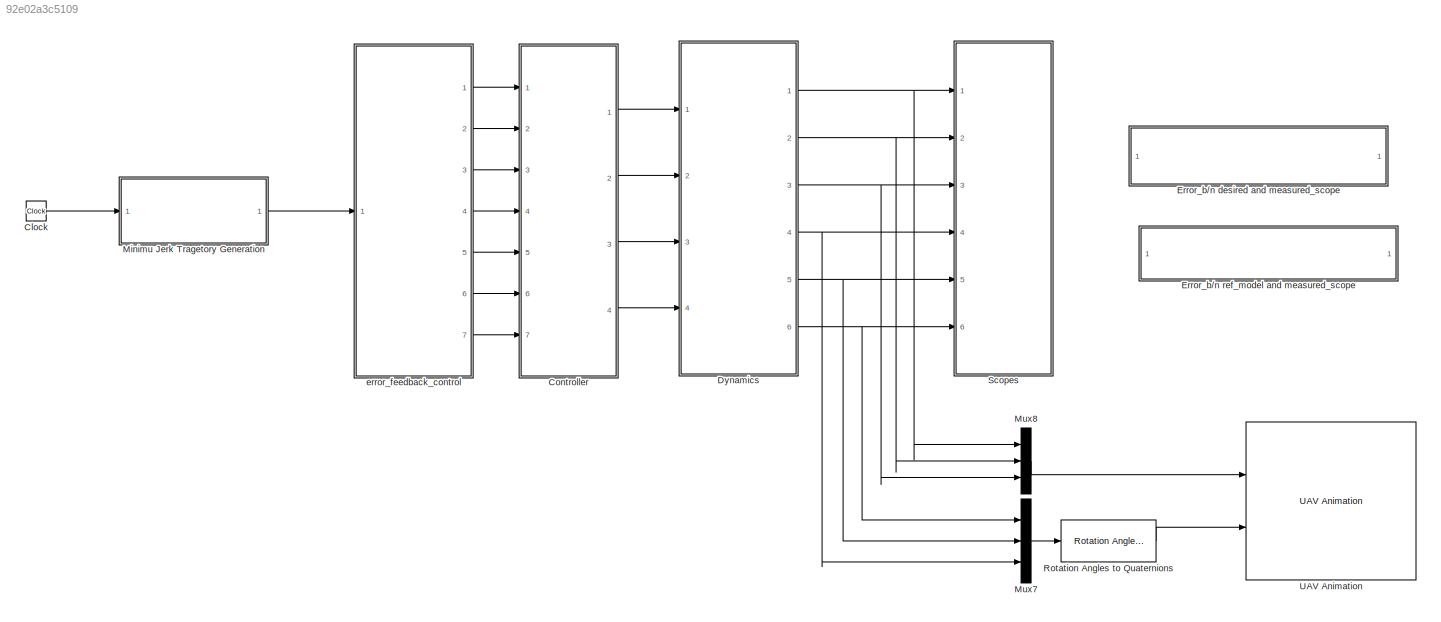
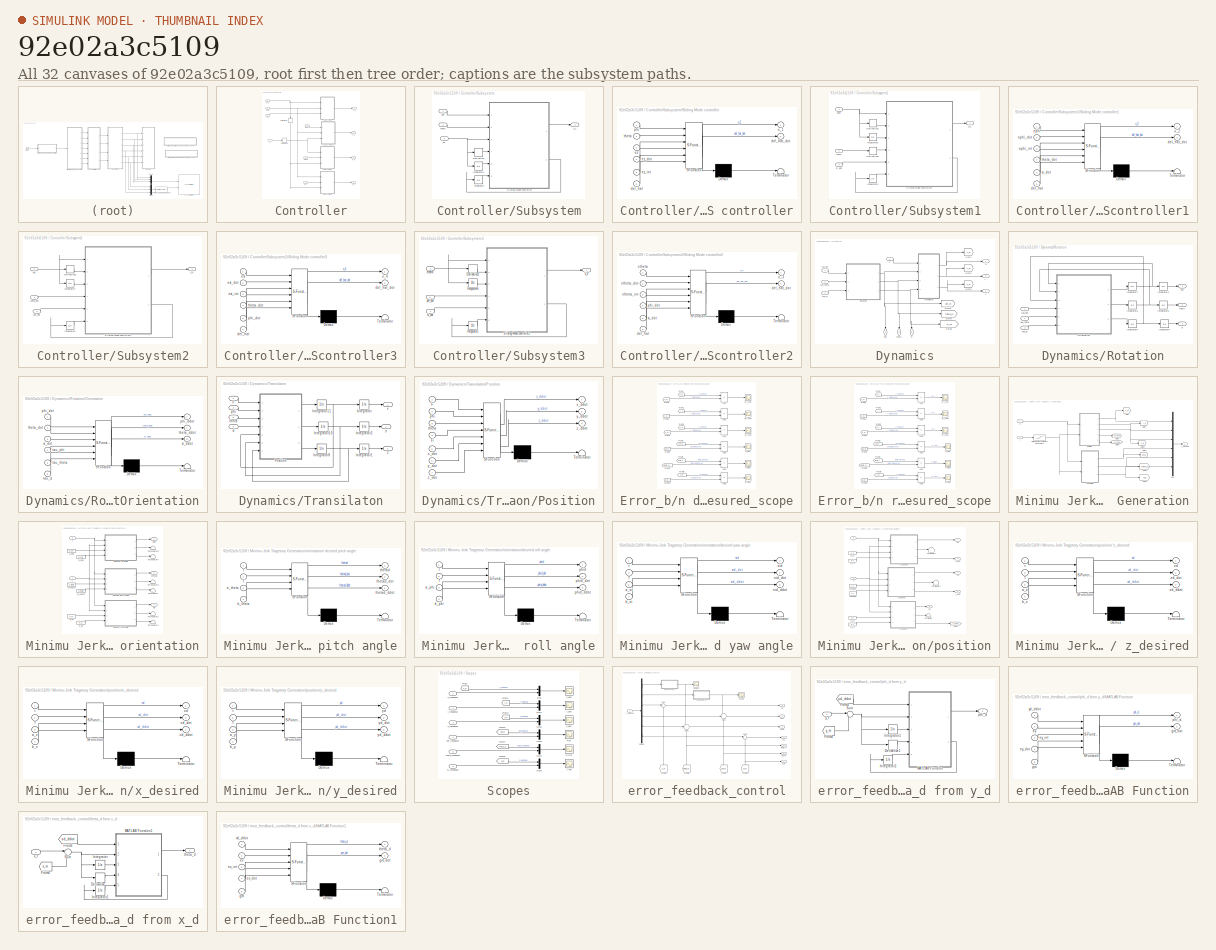
[diagram: thumbnail index - all 32 canvases of the model, root first then tree order]
MODEL slx_92e02a3c5109
KIND model
CONFIG AbsTol = auto
CONFIG EnableMultiTasking = off
CONFIG FixedStep = auto
CONFIG MaxStep = auto
CONFIG MinStep = auto
CONFIG RelTol = 1e-3
CONFIG SampleTimeConstraint = Unconstrained
CONFIG SolverName = VariableStepAuto
CONFIG StartFcn = run('Linearized_model.m')
CONFIG StartTime = 0.0
CONFIG StopTime = T_s+30
BLOCK [Clock] Clock
BLOCK [SubSystem] Controller
  Ports = [7, 4]
  RequestExecContextInheritance = off
BLOCK [Derivative] Controller/Derivative5
BLOCK [Derivative] Controller/Derivative6
  NameLocation = left
BLOCK [SubSystem] Controller/Subsystem
  Ports = [3, 1]
  RequestExecContextInheritance = off
BLOCK [Derivative] Controller/Subsystem/Derivative
BLOCK [Integrator] Controller/Subsystem/Integrator
  Ports = [1, 1]
BLOCK [Integrator] Controller/Subsystem/Integrator4
  Ports = [1, 1]
BLOCK [SubSystem] Controller/Subsystem/Sliding Mode controller
  ErrorFcn = Stateflow.Translate.translate
  PermitHierarchicalResolution = ExplicitOnly
  Ports = [6, 2]
  RequestExecContextInheritance = off
  SFBlockType = MATLAB Function
  TreatAsAtomicUnit = on
BLOCK [Demux] Controller/Subsystem/Sliding Mode controller/ Demux 
  Outputs = 1
  Ports = [1, 1]
BLOCK [S-Function] Controller/Subsystem/Sliding Mode controller/ SFunction 
  EnableBusSupport = on
  FunctionName = sf_sfun
  PortCounts = [6 3]
  Ports = [6, 3]
  SFcnIsStateOwnerBlock = off
  SFunctionDeploymentMode = off
  Tag = Stateflow S-Function 1
BLOCK [Terminator] Controller/Subsystem/Sliding Mode controller/ Terminator 
BLOCK [Inport] Controller/Subsystem/Sliding Mode controller/del_hat
  Port = 6
BLOCK [Outport] Controller/Subsystem/Sliding Mode controller/del_hat_dot
  Port = 2
BLOCK [Inport] Controller/Subsystem/Sliding Mode controller/ez
  Port = 3
BLOCK [Inport] Controller/Subsystem/Sliding Mode controller/ez_dot
  Port = 4
BLOCK [Inport] Controller/Subsystem/Sliding Mode controller/ez_int
  Port = 5
BLOCK [Inport] Controller/Subsystem/Sliding Mode controller/phi
BLOCK [Inport] Controller/Subsystem/Sliding Mode controller/theta
  Port = 2
BLOCK [Outport] Controller/Subsystem/Sliding Mode controller/u_1
BLOCK [Inport] Controller/Subsystem/ez
  Port = 3
BLOCK [Inport] Controller/Subsystem/phi
BLOCK [Inport] Controller/Subsystem/theta
  Port = 2
BLOCK [Outport] Controller/Subsystem/u_1
BLOCK [SubSystem] Controller/Subsystem1
  Ports = [3, 1]
  RequestExecContextInheritance = off
BLOCK [Derivative] Controller/Subsystem1/Derivative1
BLOCK [Derivative] Controller/Subsystem1/Derivative4
BLOCK [Integrator] Controller/Subsystem1/Integrator3
  Ports = [1, 1]
BLOCK [Integrator] Controller/Subsystem1/Integrator5
  Ports = [1, 1]
BLOCK [SubSystem] Controller/Subsystem1/Sliding Mode controller1
  ErrorFcn = Stateflow.Translate.translate
  PermitHierarchicalResolution = ExplicitOnly
  Ports = [6, 2]
  RequestExecContextInheritance = off
  SFBlockType = MATLAB Function
  TreatAsAtomicUnit = on
BLOCK [Demux] Controller/Subsystem1/Sliding Mode controller1/ Demux 
  Outputs = 1
  Ports = [1, 1]
BLOCK [S-Function] Controller/Subsystem1/Sliding Mode controller1/ SFunction 
  EnableBusSupport = on
  FunctionName = sf_sfun
  PortCounts = [6 3]
  Ports = [6, 3]
  SFcnIsStateOwnerBlock = off
  SFunctionDeploymentMode = off
  Tag = Stateflow S-Function 2
BLOCK [Terminator] Controller/Subsystem1/Sliding Mode controller1/ Terminator 
BLOCK [Inport] Controller/Subsystem1/Sliding Mode controller1/del_hat
  Port = 6
BLOCK [Outport] Controller/Subsystem1/Sliding Mode controller1/del_hat_dot
  Port = 2
BLOCK [Inport] Controller/Subsystem1/Sliding Mode controller1/ephi
BLOCK [Inport] Controller/Subsystem1/Sliding Mode controller1/ephi_dot
  Port = 2
BLOCK [Inport] Controller/Subsystem1/Sliding Mode controller1/ephi_int
  Port = 3
BLOCK [Inport] Controller/Subsystem1/Sliding Mode controller1/si_dot
  Port = 5
BLOCK [Inport] Controller/Subsystem1/Sliding Mode controller1/theta_dot
  Port = 4
BLOCK [Outport] Controller/Subsystem1/Sliding Mode controller1/u_2
BLOCK [Inport] Controller/Subsystem1/ephi
BLOCK [Inport] Controller/Subsystem1/si_dot
  Port = 3
BLOCK [Inport] Controller/Subsystem1/theta
  Port = 2
BLOCK [Outport] Controller/Subsystem1/u_2
BLOCK [SubSystem] Controller/Subsystem2
  Ports = [3, 1]
  RequestExecContextInheritance = off
BLOCK [Derivative] Controller/Subsystem2/Derivative3
BLOCK [Integrator] Controller/Subsystem2/Integrator2
  Ports = [1, 1]
BLOCK [Integrator] Controller/Subsystem2/Integrator7
  Ports = [1, 1]
BLOCK [SubSystem] Controller/Subsystem2/Sliding Mode controller3
  ErrorFcn = Stateflow.Translate.translate
  PermitHierarchicalResolution = ExplicitOnly
  Ports = [6, 2]
  RequestExecContextInheritance = off
  SFBlockType = MATLAB Function
  TreatAsAtomicUnit = on
BLOCK [Demux] Controller/Subsystem2/Sliding Mode controller3/ Demux 
  Outputs = 1
  Ports = [1, 1]
BLOCK [S-Function] Controller/Subsystem2/Sliding Mode controller3/ SFunction 
  EnableBusSupport = on
  FunctionName = sf_sfun
  PortCounts = [6 3]
  Ports = [6, 3]
  SFcnIsStateOwnerBlock = off
  SFunctionDeploymentMode = off
  Tag = Stateflow S-Function 16
BLOCK [Terminator] Controller/Subsystem2/Sliding Mode controller3/ Terminator 
BLOCK [Inport] Controller/Subsystem2/Sliding Mode controller3/del_hat
  Port = 6
BLOCK [Outport] Controller/Subsystem2/Sliding Mode controller3/del_hat_dot
  Port = 2
BLOCK [Inport] Controller/Subsystem2/Sliding Mode controller3/esi
BLOCK [Inport] Controller/Subsystem2/Sliding Mode controller3/esi_dot
  Port = 2
BLOCK [Inport] Controller/Subsystem2/Sliding Mode controller3/esi_int
  Port = 3
BLOCK [Inport] Controller/Subsystem2/Sliding Mode controller3/phi_dot
  Port = 5
BLOCK [Inport] Controller/Subsystem2/Sliding Mode controller3/theta_dot
  Port = 4
BLOCK [Outport] Controller/Subsystem2/Sliding Mode controller3/u_4
BLOCK [Inport] Controller/Subsystem2/esi
  Port = 2
BLOCK [Inport] Controller/Subsystem2/phi_dot
  Port = 3
BLOCK [Inport] Controller/Subsystem2/theta_dot
BLOCK [Outport] Controller/Subsystem2/u_4
BLOCK [SubSystem] Controller/Subsystem3
  Ports = [3, 1]
  RequestExecContextInheritance = off
BLOCK [Derivative] Controller/Subsystem3/Derivative2
BLOCK [Integrator] Controller/Subsystem3/Integrator1
  Ports = [1, 1]
BLOCK [Integrator] Controller/Subsystem3/Integrator6
  Ports = [1, 1]
BLOCK [SubSystem] Controller/Subsystem3/Sliding Mode controller2
  ErrorFcn = Stateflow.Translate.translate
  PermitHierarchicalResolution = ExplicitOnly
  Ports = [6, 2]
  RequestExecContextInheritance = off
  SFBlockType = MATLAB Function
  TreatAsAtomicUnit = on
BLOCK [Demux] Controller/Subsystem3/Sliding Mode controller2/ Demux 
  Outputs = 1
  Ports = [1, 1]
BLOCK [S-Function] Controller/Subsystem3/Sliding Mode controller2/ SFunction 
  EnableBusSupport = on
  FunctionName = sf_sfun
  PortCounts = [6 3]
  Ports = [6, 3]
  SFcnIsStateOwnerBlock = off
  SFunctionDeploymentMode = off
  Tag = Stateflow S-Function 15
BLOCK [Terminator] Controller/Subsystem3/Sliding Mode controller2/ Terminator 
BLOCK [Inport] Controller/Subsystem3/Sliding Mode controller2/del_hat
  Port = 6
BLOCK [Outport] Controller/Subsystem3/Sliding Mode controller2/del_hat_dot
  Port = 2
BLOCK [Inport] Controller/Subsystem3/Sliding Mode controller2/etheta
BLOCK [Inport] Controller/Subsystem3/Sliding Mode controller2/etheta_dot
  Port = 2
BLOCK [Inport] Controller/Subsystem3/Sliding Mode controller2/etheta_int
  Port = 3
BLOCK [Inport] Controller/Subsystem3/Sliding Mode controller2/phi_dot
  Port = 4
BLOCK [Inport] Controller/Subsystem3/Sliding Mode controller2/si_dot
  Port = 5
BLOCK [Outport] Controller/Subsystem3/Sliding Mode controller2/u_3
BLOCK [Inport] Controller/Subsystem3/etheta
  Port = 2
BLOCK [Inport] Controller/Subsystem3/phi_dot
  Port = 3
BLOCK [Inport] Controller/Subsystem3/si_dot
BLOCK [Outport] Controller/Subsystem3/u_3
BLOCK [Inport] Controller/ephi
  NameLocation = top
  Port = 2
BLOCK [Inport] Controller/esi
  Port = 4
BLOCK [Inport] Controller/etheta
  Port = 3
BLOCK [Inport] Controller/ez
BLOCK [Inport] Controller/phi
  Port = 5
BLOCK [Inport] Controller/si
  Port = 7
BLOCK [Inport] Controller/theta
  Port = 6
BLOCK [Outport] Controller/u_1
BLOCK [Outport] Controller/u_2
  Port = 2
BLOCK [Outport] Controller/u_3
  Port = 3
BLOCK [Outport] Controller/u_4
  Port = 4
BLOCK [SubSystem] Dynamics
  Ports = [4, 6]
  RequestExecContextInheritance = off
BLOCK [Inport] Dynamics/F
BLOCK [Goto] Dynamics/Goto
  GotoTag = x_m
  TagVisibility = global
BLOCK [Goto] Dynamics/Goto1
  GotoTag = y_m
  TagVisibility = global
BLOCK [Goto] Dynamics/Goto2
  GotoTag = z_m
  TagVisibility = global
BLOCK [Goto] Dynamics/Goto3
  GotoTag = phi_m
  TagVisibility = global
BLOCK [Goto] Dynamics/Goto4
  GotoTag = theta_m
  TagVisibility = global
BLOCK [Goto] Dynamics/Goto5
  GotoTag = si_m
  TagVisibility = global
BLOCK [SubSystem] Dynamics/Rotation
  Ports = [3, 3]
  RequestExecContextInheritance = off
BLOCK [Integrator] Dynamics/Rotation/Integrator3
  Ports = [1, 1]
BLOCK [Integrator] Dynamics/Rotation/Integrator4
  Ports = [1, 1]
BLOCK [Integrator] Dynamics/Rotation/Integrator5
  Ports = [1, 1]
BLOCK [Integrator] Dynamics/Rotation/Integrator6
  Ports = [1, 1]
BLOCK [Integrator] Dynamics/Rotation/Integrator7
  Ports = [1, 1]
BLOCK [Integrator] Dynamics/Rotation/Integrator9
  Ports = [1, 1]
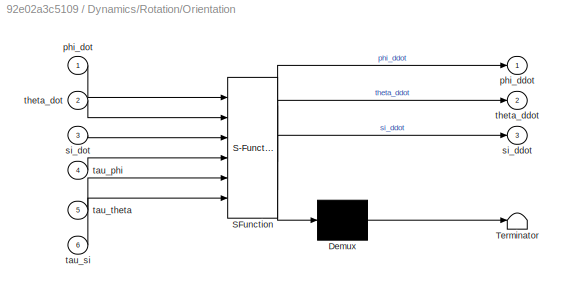
BLOCK [SubSystem] Dynamics/Rotation/Orientation
  ErrorFcn = Stateflow.Translate.translate
  PermitHierarchicalResolution = ExplicitOnly
  Ports = [6, 3]
  RequestExecContextInheritance = off
  SFBlockType = MATLAB Function
  TreatAsAtomicUnit = on
BLOCK [Demux] Dynamics/Rotation/Orientation/ Demux 
  Outputs = 1
  Ports = [1, 1]
BLOCK [S-Function] Dynamics/Rotation/Orientation/ SFunction 
  EnableBusSupport = on
  FunctionName = sf_sfun
  PortCounts = [6 4]
  Ports = [6, 4]
  SFcnIsStateOwnerBlock = off
  SFunctionDeploymentMode = off
  Tag = Stateflow S-Function 6
BLOCK [Terminator] Dynamics/Rotation/Orientation/ Terminator 
BLOCK [Outport] Dynamics/Rotation/Orientation/phi_ddot
BLOCK [Inport] Dynamics/Rotation/Orientation/phi_dot
BLOCK [Outport] Dynamics/Rotation/Orientation/si_ddot
  Port = 3
BLOCK [Inport] Dynamics/Rotation/Orientation/si_dot
  Port = 3
BLOCK [Inport] Dynamics/Rotation/Orientation/tau_phi
  Port = 4
BLOCK [Inport] Dynamics/Rotation/Orientation/tau_si
  Port = 6
BLOCK [Inport] Dynamics/Rotation/Orientation/tau_theta
  Port = 5
BLOCK [Outport] Dynamics/Rotation/Orientation/theta_ddot
  Port = 2
BLOCK [Inport] Dynamics/Rotation/Orientation/theta_dot
  Port = 2
BLOCK [Outport] Dynamics/Rotation/phi
BLOCK [Outport] Dynamics/Rotation/si
  Port = 3
BLOCK [Inport] Dynamics/Rotation/tau_phi
BLOCK [Inport] Dynamics/Rotation/tau_si
  Port = 3
BLOCK [Inport] Dynamics/Rotation/tau_theta
  Port = 2
BLOCK [Outport] Dynamics/Rotation/theta
  Port = 2
BLOCK [SubSystem] Dynamics/Transilaton
  Ports = [4, 3]
  RequestExecContextInheritance = off
BLOCK [Inport] Dynamics/Transilaton/F
BLOCK [Integrator] Dynamics/Transilaton/Integrator
  Ports = [1, 1]
BLOCK [Integrator] Dynamics/Transilaton/Integrator1
  Ports = [1, 1]
BLOCK [Integrator] Dynamics/Transilaton/Integrator10
  Ports = [1, 1]
BLOCK [Integrator] Dynamics/Transilaton/Integrator11
  Ports = [1, 1]
BLOCK [Integrator] Dynamics/Transilaton/Integrator2
  Ports = [1, 1]
BLOCK [Integrator] Dynamics/Transilaton/Integrator8
  Ports = [1, 1]
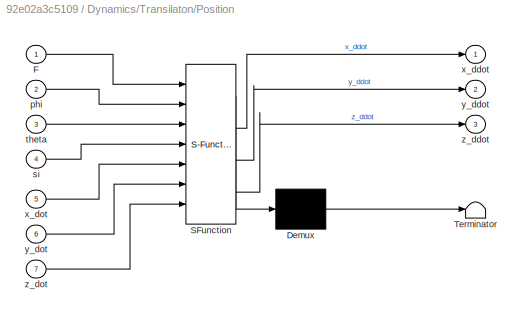
BLOCK [SubSystem] Dynamics/Transilaton/Position
  ErrorFcn = Stateflow.Translate.translate
  PermitHierarchicalResolution = ExplicitOnly
  Ports = [7, 3]
  RequestExecContextInheritance = off
  SFBlockType = MATLAB Function
  TreatAsAtomicUnit = on
BLOCK [Demux] Dynamics/Transilaton/Position/ Demux 
  Outputs = 1
  Ports = [1, 1]
BLOCK [S-Function] Dynamics/Transilaton/Position/ SFunction 
  EnableBusSupport = on
  FunctionName = sf_sfun
  PortCounts = [7 4]
  Ports = [7, 4]
  SFcnIsStateOwnerBlock = off
  SFunctionDeploymentMode = off
  Tag = Stateflow S-Function 5
BLOCK [Terminator] Dynamics/Transilaton/Position/ Terminator 
BLOCK [Inport] Dynamics/Transilaton/Position/F
BLOCK [Inport] Dynamics/Transilaton/Position/phi
  Port = 2
BLOCK [Inport] Dynamics/Transilaton/Position/si
  Port = 4
BLOCK [Inport] Dynamics/Transilaton/Position/theta
  Port = 3
BLOCK [Outport] Dynamics/Transilaton/Position/x_ddot
BLOCK [Inport] Dynamics/Transilaton/Position/x_dot
  Port = 5
BLOCK [Outport] Dynamics/Transilaton/Position/y_ddot
  Port = 2
BLOCK [Inport] Dynamics/Transilaton/Position/y_dot
  Port = 6
BLOCK [Outport] Dynamics/Transilaton/Position/z_ddot
  Port = 3
BLOCK [Inport] Dynamics/Transilaton/Position/z_dot
  Port = 7
BLOCK [Inport] Dynamics/Transilaton/phi
  Port = 2
BLOCK [Inport] Dynamics/Transilaton/si
  Port = 4
BLOCK [Inport] Dynamics/Transilaton/theta
  Port = 3
BLOCK [Outport] Dynamics/Transilaton/x
BLOCK [Outport] Dynamics/Transilaton/y
  Port = 2
BLOCK [Outport] Dynamics/Transilaton/z
  Port = 3
BLOCK [Outport] Dynamics/phi
  NameLocation = left
  Port = 4
BLOCK [Outport] Dynamics/si
  NameLocation = left
  Port = 6
BLOCK [Inport] Dynamics/tau_phi
  Port = 2
BLOCK [Inport] Dynamics/tau_si
  Port = 4
BLOCK [Inport] Dynamics/tau_theta
  Port = 3
BLOCK [Outport] Dynamics/theta
  NameLocation = left
  Port = 5
BLOCK [Outport] Dynamics/x
BLOCK [Outport] Dynamics/y
  Port = 2
BLOCK [Outport] Dynamics/z
  Port = 3
BLOCK [SubSystem] Error_b//n desired and measured_scope
  Ports = []
  RequestExecContextInheritance = off
BLOCK [Sum] Error_b//n desired and measured_scope/Add
  IconShape = rectangular
  Inputs = +-
  Ports = [2, 1]
BLOCK [Sum] Error_b//n desired and measured_scope/Add1
  IconShape = rectangular
  Inputs = +-
  Ports = [2, 1]
BLOCK [Sum] Error_b//n desired and measured_scope/Add2
  IconShape = rectangular
  Inputs = +-
  Ports = [2, 1]
BLOCK [Sum] Error_b//n desired and measured_scope/Add3
  IconShape = rectangular
  Inputs = +-
  Ports = [2, 1]
BLOCK [Sum] Error_b//n desired and measured_scope/Add4
  IconShape = rectangular
  Inputs = +-
  Ports = [2, 1]
BLOCK [Sum] Error_b//n desired and measured_scope/Add5
  IconShape = rectangular
  Inputs = +-
  Ports = [2, 1]
BLOCK [From] Error_b//n desired and measured_scope/From
  GotoTag = x_d
  TagVisibility = global
BLOCK [From] Error_b//n desired and measured_scope/From1
  GotoTag = y_d
  TagVisibility = global
BLOCK [From] Error_b//n desired and measured_scope/From10
  GotoTag = si_m
  TagVisibility = global
BLOCK [From] Error_b//n desired and measured_scope/From11
  GotoTag = y_m
  TagVisibility = global
BLOCK [From] Error_b//n desired and measured_scope/From2
  GotoTag = z_d
  TagVisibility = global
BLOCK [From] Error_b//n desired and measured_scope/From3
  GotoTag = phi_d
  TagVisibility = global
BLOCK [From] Error_b//n desired and measured_scope/From4
  GotoTag = theta_d
  TagVisibility = global
BLOCK [From] Error_b//n desired and measured_scope/From5
  GotoTag = si_d
  TagVisibility = global
BLOCK [From] Error_b//n desired and measured_scope/From6
  GotoTag = x_m
  TagVisibility = global
BLOCK [From] Error_b//n desired and measured_scope/From7
  GotoTag = z_m
  TagVisibility = global
BLOCK [From] Error_b//n desired and measured_scope/From8
  GotoTag = phi_m
  TagVisibility = global
BLOCK [From] Error_b//n desired and measured_scope/From9
  GotoTag = theta_m
  TagVisibility = global
BLOCK [Scope] Error_b//n desired and measured_scope/e-Yaw
  Floating = off
  NumInputPorts = 1
  Ports = [1]
  ScopeSpecificationString = Simulink.scopes.TimeScopeBlockCfg('CurrentConfiguration', extmgr.ConfigurationSet(extmgr.Configuration('Core','General UI',true),extmgr.Configuration('Core','Source UI',true),extmgr.Configuration('Sources','WiredSimulink',true,'DataLoggingVariableName','ScopeData3'),extmgr.Configuration('Visuals','Time Domain',true,'SerializedDisplays',{struct('MinYLimReal','-0.0002','MaxYLimReal','0.00004','YLabe...<+1451ch>
BLOCK [Scope] Error_b//n desired and measured_scope/e_Pitch
  Floating = off
  NumInputPorts = 1
  Ports = [1]
  ScopeSpecificationString = Simulink.scopes.TimeScopeBlockCfg('CurrentConfiguration', extmgr.ConfigurationSet(extmgr.Configuration('Core','General UI',true),extmgr.Configuration('Core','Source UI',true),extmgr.Configuration('Sources','WiredSimulink',true,'DataLoggingVariableName','ScopeData1'),extmgr.Configuration('Visuals','Time Domain',true,'SerializedDisplays',{struct('MinYLimReal','-0.01587','MaxYLimReal','0.01561','YLab...<+1438ch>
BLOCK [Scope] Error_b//n desired and measured_scope/e_Roll
  Floating = off
  NumInputPorts = 1
  Ports = [1]
  ScopeSpecificationString = Simulink.scopes.TimeScopeBlockCfg('CurrentConfiguration', extmgr.ConfigurationSet(extmgr.Configuration('Core','General UI',true),extmgr.Configuration('Core','Source UI',true),extmgr.Configuration('Sources','WiredSimulink',true,'DataLoggingVariableName','ScopeData2'),extmgr.Configuration('Visuals','Time Domain',true,'SerializedDisplays',{struct('MinYLimReal','-0.01551','MaxYLimReal','0.01561','YLab...<+1438ch>
BLOCK [Scope] Error_b//n desired and measured_scope/e_x_pos
  Floating = off
  NumInputPorts = 1
  Ports = [1]
  ScopeSpecificationString = Simulink.scopes.TimeScopeBlockCfg('CurrentConfiguration', extmgr.ConfigurationSet(extmgr.Configuration('Core','General UI',true),extmgr.Configuration('Core','Source UI',true),extmgr.Configuration('Sources','WiredSimulink',true,'DataLoggingVariableName','ScopeData4'),extmgr.Configuration('Visuals','Time Domain',true,'SerializedDisplays',{struct('MinYLimReal','-0.00686','MaxYLimReal','0.00708','YLab...<+1435ch>
BLOCK [Scope] Error_b//n desired and measured_scope/e_y_pos
  Floating = off
  NumInputPorts = 1
  Ports = [1]
  ScopeSpecificationString = Simulink.scopes.TimeScopeBlockCfg('CurrentConfiguration', extmgr.ConfigurationSet(extmgr.Configuration('Core','General UI',true),extmgr.Configuration('Core','Source UI',true),extmgr.Configuration('Sources','WiredSimulink',true,'DataLoggingVariableName','ScopeData5'),extmgr.Configuration('Visuals','Time Domain',true,'SerializedDisplays',{struct('MinYLimReal','-0.00653','MaxYLimReal','0.00655','YLab...<+1481ch>
BLOCK [Scope] Error_b//n desired and measured_scope/e_z_pos
  Floating = off
  NumInputPorts = 1
  Ports = [1]
  ScopeSpecificationString = Simulink.scopes.TimeScopeBlockCfg('CurrentConfiguration', extmgr.ConfigurationSet(extmgr.Configuration('Core','General UI',true),extmgr.Configuration('Core','Source UI',true),extmgr.Configuration('Sources','WiredSimulink',true,'DataLoggingVariableName','ScopeData6'),extmgr.Configuration('Visuals','Time Domain',true,'SerializedDisplays',{struct('MinYLimReal','-0.000016','MaxYLimReal','0.000007','YL...<+1489ch>
BLOCK [SubSystem] Error_b//n ref_model and measured_scope
  Ports = []
  RequestExecContextInheritance = off
BLOCK [Sum] Error_b//n ref_model and measured_scope/Add
  IconShape = rectangular
  Inputs = +-
  Ports = [2, 1]
BLOCK [Sum] Error_b//n ref_model and measured_scope/Add1
  IconShape = rectangular
  Inputs = +-
  Ports = [2, 1]
BLOCK [Sum] Error_b//n ref_model and measured_scope/Add2
  IconShape = rectangular
  Inputs = +-
  Ports = [2, 1]
BLOCK [Sum] Error_b//n ref_model and measured_scope/Add3
  IconShape = rectangular
  Inputs = +-
  Ports = [2, 1]
BLOCK [Sum] Error_b//n ref_model and measured_scope/Add4
  IconShape = rectangular
  Inputs = +-
  Ports = [2, 1]
BLOCK [Sum] Error_b//n ref_model and measured_scope/Add5
  IconShape = rectangular
  Inputs = +-
  Ports = [2, 1]
BLOCK [From] Error_b//n ref_model and measured_scope/From
  GotoTag = x_r
BLOCK [From] Error_b//n ref_model and measured_scope/From1
  GotoTag = y_r
BLOCK [From] Error_b//n ref_model and measured_scope/From10
  GotoTag = si_m
  TagVisibility = global
BLOCK [From] Error_b//n ref_model and measured_scope/From11
  GotoTag = y_m
  TagVisibility = global
BLOCK [From] Error_b//n ref_model and measured_scope/From2
  GotoTag = z_r
BLOCK [From] Error_b//n ref_model and measured_scope/From3
  GotoTag = phi_r
BLOCK [From] Error_b//n ref_model and measured_scope/From4
  GotoTag = theta_r
BLOCK [From] Error_b//n ref_model and measured_scope/From5
  GotoTag = si_r
BLOCK [From] Error_b//n ref_model and measured_scope/From6
  GotoTag = x_m
  TagVisibility = global
BLOCK [From] Error_b//n ref_model and measured_scope/From7
  GotoTag = z_m
  TagVisibility = global
BLOCK [From] Error_b//n ref_model and measured_scope/From8
  GotoTag = phi_m
  TagVisibility = global
BLOCK [From] Error_b//n ref_model and measured_scope/From9
  GotoTag = theta_m
  TagVisibility = global
BLOCK [Scope] Error_b//n ref_model and measured_scope/e-Yaw
  Floating = off
  NumInputPorts = 1
  Ports = [1]
  ScopeSpecificationString = Simulink.scopes.TimeScopeBlockCfg('CurrentConfiguration', extmgr.ConfigurationSet(extmgr.Configuration('Core','General UI',true),extmgr.Configuration('Core','Source UI',true),extmgr.Configuration('Sources','WiredSimulink',true,'DataLoggingVariableName','ScopeData3'),extmgr.Configuration('Visuals','Time Domain',true,'SerializedDisplays',{struct('MinYLimReal','-0.0002','MaxYLimReal','0.00004','YLabe...<+1454ch>
BLOCK [Scope] Error_b//n ref_model and measured_scope/e_Pitch
  Floating = off
  NumInputPorts = 1
  Ports = [1]
  ScopeSpecificationString = Simulink.scopes.TimeScopeBlockCfg('CurrentConfiguration', extmgr.ConfigurationSet(extmgr.Configuration('Core','General UI',true),extmgr.Configuration('Core','Source UI',true),extmgr.Configuration('Sources','WiredSimulink',true,'DataLoggingVariableName','ScopeData1'),extmgr.Configuration('Visuals','Time Domain',true,'SerializedDisplays',{struct('MinYLimReal','-0.00048','MaxYLimReal','0.0005','YLabe...<+1413ch>
BLOCK [Scope] Error_b//n ref_model and measured_scope/e_Roll
  Floating = off
  NumInputPorts = 1
  Ports = [1]
  ScopeSpecificationString = Simulink.scopes.TimeScopeBlockCfg('CurrentConfiguration', extmgr.ConfigurationSet(extmgr.Configuration('Core','General UI',true),extmgr.Configuration('Core','Source UI',true),extmgr.Configuration('Sources','WiredSimulink',true,'DataLoggingVariableName','ScopeData2'),extmgr.Configuration('Visuals','Time Domain',true,'SerializedDisplays',{struct('MinYLimReal','-0.00675','MaxYLimReal','0.00075','YLab...<+1416ch>
BLOCK [Scope] Error_b//n ref_model and measured_scope/e_x_pos
  Floating = off
  NumInputPorts = 1
  Ports = [1]
  ScopeSpecificationString = Simulink.scopes.TimeScopeBlockCfg('CurrentConfiguration', extmgr.ConfigurationSet(extmgr.Configuration('Core','General UI',true),extmgr.Configuration('Core','Source UI',true),extmgr.Configuration('Sources','WiredSimulink',true,'DataLoggingVariableName','ScopeData4'),extmgr.Configuration('Visuals','Time Domain',true,'SerializedDisplays',{struct('MinYLimReal','-0.01962','MaxYLimReal','0.00985','YLab...<+1410ch>
BLOCK [Scope] Error_b//n ref_model and measured_scope/e_y_pos
  Floating = off
  NumInputPorts = 1
  Ports = [1]
  ScopeSpecificationString = Simulink.scopes.TimeScopeBlockCfg('CurrentConfiguration', extmgr.ConfigurationSet(extmgr.Configuration('Core','General UI',true),extmgr.Configuration('Core','Source UI',true),extmgr.Configuration('Sources','WiredSimulink',true,'DataLoggingVariableName','ScopeData5'),extmgr.Configuration('Visuals','Time Domain',true,'SerializedDisplays',{struct('MinYLimReal','-3.66401','MaxYLimReal','32.97612','YLa...<+1459ch>
BLOCK [Scope] Error_b//n ref_model and measured_scope/e_z_pos
  Floating = off
  NumInputPorts = 1
  Ports = [1]
  ScopeSpecificationString = Simulink.scopes.TimeScopeBlockCfg('CurrentConfiguration', extmgr.ConfigurationSet(extmgr.Configuration('Core','General UI',true),extmgr.Configuration('Core','Source UI',true),extmgr.Configuration('Sources','WiredSimulink',true,'DataLoggingVariableName','ScopeData6'),extmgr.Configuration('Visuals','Time Domain',true,'SerializedDisplays',{struct('MinYLimReal','-0.10922','MaxYLimReal','0.97344','YLab...<+1455ch>
BLOCK [SubSystem] Minimu Jerk Tragetory Generation
  Ports = [1, 1]
  RequestExecContextInheritance = off
BLOCK [Goto] Minimu Jerk Tragetory Generation/Goto
  GotoTag = x_d
  TagVisibility = global
BLOCK [Goto] Minimu Jerk Tragetory Generation/Goto1
  GotoTag = y_d
  TagVisibility = global
BLOCK [Goto] Minimu Jerk Tragetory Generation/Goto2
  GotoTag = z_d
  TagVisibility = global
BLOCK [Goto] Minimu Jerk Tragetory Generation/Goto3
  GotoTag = phi_d
  TagVisibility = global
BLOCK [Goto] Minimu Jerk Tragetory Generation/Goto4
  GotoTag = si_d
  TagVisibility = global
BLOCK [Goto] Minimu Jerk Tragetory Generation/Goto5
  GotoTag = yd_ddot
  TagVisibility = global
BLOCK [Goto] Minimu Jerk Tragetory Generation/Goto6
  GotoTag = theta_d
  TagVisibility = global
BLOCK [Goto] Minimu Jerk Tragetory Generation/Goto7
  GotoTag = xd_ddot
  TagVisibility = global
BLOCK [Saturate] Minimu Jerk Tragetory Generation/Limit_clock for Trajectory generator1
  LowerLimit = 0
  UpperLimit = T_s
BLOCK [Mux] Minimu Jerk Tragetory Generation/Mux
  DisplayOption = bar
  Inputs = 6
  Ports = [6, 1]
BLOCK [Constant] Minimu Jerk Tragetory Generation/T1
  Value = T_r
BLOCK [SubSystem] Minimu Jerk Tragetory Generation/orientation
  Ports = [2, 3]
  RequestExecContextInheritance = off
BLOCK [SubSystem] Minimu Jerk Tragetory Generation/orientation/ desired pitch angle
  ErrorFcn = Stateflow.Translate.translate
  PermitHierarchicalResolution = ExplicitOnly
  Ports = [4, 3]
  RequestExecContextInheritance = off
  SFBlockType = MATLAB Function
  TreatAsAtomicUnit = on
BLOCK [Demux] Minimu Jerk Tragetory Generation/orientation/ desired pitch angle/ Demux 
  Outputs = 1
  Ports = [1, 1]
BLOCK [S-Function] Minimu Jerk Tragetory Generation/orientation/ desired pitch angle/ SFunction 
  EnableBusSupport = on
  FunctionName = sf_sfun
  PortCounts = [4 4]
  Ports = [4, 4]
  SFcnIsStateOwnerBlock = off
  SFunctionDeploymentMode = off
  Tag = Stateflow S-Function 3
BLOCK [Terminator] Minimu Jerk Tragetory Generation/orientation/ desired pitch angle/ Terminator 
BLOCK [Inport] Minimu Jerk Tragetory Generation/orientation/ desired pitch angle/T
  Port = 2
BLOCK [Inport] Minimu Jerk Tragetory Generation/orientation/ desired pitch angle/a_theta
  Port = 3
BLOCK [Inport] Minimu Jerk Tragetory Generation/orientation/ desired pitch angle/b_theta
  Port = 4
BLOCK [Inport] Minimu Jerk Tragetory Generation/orientation/ desired pitch angle/t
BLOCK [Outport] Minimu Jerk Tragetory Generation/orientation/ desired pitch angle/thetad
BLOCK [Outport] Minimu Jerk Tragetory Generation/orientation/ desired pitch angle/thetad_ddot
  Port = 3
BLOCK [Outport] Minimu Jerk Tragetory Generation/orientation/ desired pitch angle/thetad_dot
  Port = 2
BLOCK [Inport] Minimu Jerk Tragetory Generation/orientation/T
BLOCK [Terminator] Minimu Jerk Tragetory Generation/orientation/Terminator
BLOCK [Terminator] Minimu Jerk Tragetory Generation/orientation/Terminator1
BLOCK [Terminator] Minimu Jerk Tragetory Generation/orientation/Terminator2
BLOCK [Terminator] Minimu Jerk Tragetory Generation/orientation/Terminator3
BLOCK [Terminator] Minimu Jerk Tragetory Generation/orientation/Terminator4
BLOCK [Terminator] Minimu Jerk Tragetory Generation/orientation/Terminator5
BLOCK [Constant] Minimu Jerk Tragetory Generation/orientation/a_phi1
  Value = a_phi
BLOCK [Constant] Minimu Jerk Tragetory Generation/orientation/a_si1
  Value = a_si
BLOCK [Constant] Minimu Jerk Tragetory Generation/orientation/a_theta1
  Value = a_theta
BLOCK [Constant] Minimu Jerk Tragetory Generation/orientation/b_phi1
  Value = b_phi
BLOCK [Constant] Minimu Jerk Tragetory Generation/orientation/b_si1
  Value = b_si
BLOCK [Constant] Minimu Jerk Tragetory Generation/orientation/b_theta1
  Value = b_theta
BLOCK [SubSystem] Minimu Jerk Tragetory Generation/orientation/desired roll angle
  ErrorFcn = Stateflow.Translate.translate
  PermitHierarchicalResolution = ExplicitOnly
  Ports = [4, 3]
  RequestExecContextInheritance = off
  SFBlockType = MATLAB Function
  TreatAsAtomicUnit = on
BLOCK [Demux] Minimu Jerk Tragetory Generation/orientation/desired roll angle/ Demux 
  Outputs = 1
  Ports = [1, 1]
BLOCK [S-Function] Minimu Jerk Tragetory Generation/orientation/desired roll angle/ SFunction 
  EnableBusSupport = on
  FunctionName = sf_sfun
  PortCounts = [4 4]
  Ports = [4, 4]
  SFcnIsStateOwnerBlock = off
  SFunctionDeploymentMode = off
  Tag = Stateflow S-Function 4
BLOCK [Terminator] Minimu Jerk Tragetory Generation/orientation/desired roll angle/ Terminator 
BLOCK [Inport] Minimu Jerk Tragetory Generation/orientation/desired roll angle/T
  Port = 2
BLOCK [Inport] Minimu Jerk Tragetory Generation/orientation/desired roll angle/a_phi
  Port = 3
BLOCK [Inport] Minimu Jerk Tragetory Generation/orientation/desired roll angle/b_phi
  Port = 4
BLOCK [Outport] Minimu Jerk Tragetory Generation/orientation/desired roll angle/phid
BLOCK [Outport] Minimu Jerk Tragetory Generation/orientation/desired roll angle/phid_ddot
  Port = 3
BLOCK [Outport] Minimu Jerk Tragetory Generation/orientation/desired roll angle/phid_dot
  Port = 2
BLOCK [Inport] Minimu Jerk Tragetory Generation/orientation/desired roll angle/t
BLOCK [SubSystem] Minimu Jerk Tragetory Generation/orientation/desired yaw angle
  ErrorFcn = Stateflow.Translate.translate
  PermitHierarchicalResolution = ExplicitOnly
  Ports = [4, 3]
  RequestExecContextInheritance = off
  SFBlockType = MATLAB Function
  TreatAsAtomicUnit = on
BLOCK [Demux] Minimu Jerk Tragetory Generation/orientation/desired yaw angle/ Demux 
  Outputs = 1
  Ports = [1, 1]
BLOCK [S-Function] Minimu Jerk Tragetory Generation/orientation/desired yaw angle/ SFunction 
  EnableBusSupport = on
  FunctionName = sf_sfun
  PortCounts = [4 4]
  Ports = [4, 4]
  SFcnIsStateOwnerBlock = off
  SFunctionDeploymentMode = off
  Tag = Stateflow S-Function 9
BLOCK [Terminator] Minimu Jerk Tragetory Generation/orientation/desired yaw angle/ Terminator 
BLOCK [Inport] Minimu Jerk Tragetory Generation/orientation/desired yaw angle/T
  Port = 2
BLOCK [Inport] Minimu Jerk Tragetory Generation/orientation/desired yaw angle/a_si
  Port = 3
BLOCK [Inport] Minimu Jerk Tragetory Generation/orientation/desired yaw angle/b_si
  Port = 4
BLOCK [Outport] Minimu Jerk Tragetory Generation/orientation/desired yaw angle/sid
BLOCK [Outport] Minimu Jerk Tragetory Generation/orientation/desired yaw angle/sid_ddot
  Port = 3
BLOCK [Outport] Minimu Jerk Tragetory Generation/orientation/desired yaw angle/sid_dot
  Port = 2
BLOCK [Inport] Minimu Jerk Tragetory Generation/orientation/desired yaw angle/t
BLOCK [Outport] Minimu Jerk Tragetory Generation/orientation/phid
BLOCK [Outport] Minimu Jerk Tragetory Generation/orientation/sid
  Port = 3
BLOCK [Inport] Minimu Jerk Tragetory Generation/orientation/t
  Port = 2
BLOCK [Outport] Minimu Jerk Tragetory Generation/orientation/thetad
  Port = 2
BLOCK [SubSystem] Minimu Jerk Tragetory Generation/position
  Ports = [2, 5]
  RequestExecContextInheritance = off
BLOCK [SubSystem] Minimu Jerk Tragetory Generation/position/ z_desired
  ErrorFcn = Stateflow.Translate.translate
  PermitHierarchicalResolution = ExplicitOnly
  Ports = [4, 3]
  RequestExecContextInheritance = off
  SFBlockType = MATLAB Function
  TreatAsAtomicUnit = on
BLOCK [Demux] Minimu Jerk Tragetory Generation/position/ z_desired/ Demux 
  Outputs = 1
  Ports = [1, 1]
BLOCK [S-Function] Minimu Jerk Tragetory Generation/position/ z_desired/ SFunction 
  EnableBusSupport = on
  FunctionName = sf_sfun
  PortCounts = [4 4]
  Ports = [4, 4]
  SFcnIsStateOwnerBlock = off
  SFunctionDeploymentMode = off
  Tag = Stateflow S-Function 10
BLOCK [Terminator] Minimu Jerk Tragetory Generation/position/ z_desired/ Terminator 
BLOCK [Inport] Minimu Jerk Tragetory Generation/position/ z_desired/T
  Port = 2
BLOCK [Inport] Minimu Jerk Tragetory Generation/position/ z_desired/a_z
  Port = 3
BLOCK [Inport] Minimu Jerk Tragetory Generation/position/ z_desired/b_z
  Port = 4
BLOCK [Inport] Minimu Jerk Tragetory Generation/position/ z_desired/t
BLOCK [Outport] Minimu Jerk Tragetory Generation/position/ z_desired/zd
BLOCK [Outport] Minimu Jerk Tragetory Generation/position/ z_desired/zd_ddot
  Port = 3
BLOCK [Outport] Minimu Jerk Tragetory Generation/position/ z_desired/zd_dot
  Port = 2
BLOCK [Constant] Minimu Jerk Tragetory Generation/position/Constant
  Value = a_y
BLOCK [Constant] Minimu Jerk Tragetory Generation/position/Constant1
  Value = b_y
BLOCK [Goto] Minimu Jerk Tragetory Generation/position/Goto8
  GotoTag = z_ddot
  TagVisibility = global
BLOCK [Inport] Minimu Jerk Tragetory Generation/position/T
BLOCK [Terminator] Minimu Jerk Tragetory Generation/position/Terminator
BLOCK [Terminator] Minimu Jerk Tragetory Generation/position/Terminator1
BLOCK [Terminator] Minimu Jerk Tragetory Generation/position/Terminator3
BLOCK [Constant] Minimu Jerk Tragetory Generation/position/a_x1
  Value = a_x
BLOCK [Constant] Minimu Jerk Tragetory Generation/position/a_z1
  Value = a_z
BLOCK [Constant] Minimu Jerk Tragetory Generation/position/b_x1
  Value = b_x
BLOCK [Constant] Minimu Jerk Tragetory Generation/position/b_z1
  Value = b_z
BLOCK [Inport] Minimu Jerk Tragetory Generation/position/t
  Port = 2
BLOCK [Outport] Minimu Jerk Tragetory Generation/position/x_ddot
  Port = 4
BLOCK [SubSystem] Minimu Jerk Tragetory Generation/position/x_desired
  ErrorFcn = Stateflow.Translate.translate
  PermitHierarchicalResolution = ExplicitOnly
  Ports = [4, 3]
  RequestExecContextInheritance = off
  SFBlockType = MATLAB Function
  TreatAsAtomicUnit = on
BLOCK [Demux] Minimu Jerk Tragetory Generation/position/x_desired/ Demux 
  Outputs = 1
  Ports = [1, 1]
BLOCK [S-Function] Minimu Jerk Tragetory Generation/position/x_desired/ SFunction 
  EnableBusSupport = on
  FunctionName = sf_sfun
  PortCounts = [4 4]
  Ports = [4, 4]
  SFcnIsStateOwnerBlock = off
  SFunctionDeploymentMode = off
  Tag = Stateflow S-Function 11
BLOCK [Terminator] Minimu Jerk Tragetory Generation/position/x_desired/ Terminator 
BLOCK [Inport] Minimu Jerk Tragetory Generation/position/x_desired/T
  Port = 2
BLOCK [Inport] Minimu Jerk Tragetory Generation/position/x_desired/a_x
  Port = 3
BLOCK [Inport] Minimu Jerk Tragetory Generation/position/x_desired/b_x
  Port = 4
BLOCK [Inport] Minimu Jerk Tragetory Generation/position/x_desired/t
BLOCK [Outport] Minimu Jerk Tragetory Generation/position/x_desired/xd
BLOCK [Outport] Minimu Jerk Tragetory Generation/position/x_desired/xd_ddot
  Port = 3
BLOCK [Outport] Minimu Jerk Tragetory Generation/position/x_desired/xd_dot
  Port = 2
BLOCK [Outport] Minimu Jerk Tragetory Generation/position/xd
BLOCK [Outport] Minimu Jerk Tragetory Generation/position/y_ddot
  Port = 5
BLOCK [SubSystem] Minimu Jerk Tragetory Generation/position/y_desired
  ErrorFcn = Stateflow.Translate.translate
  PermitHierarchicalResolution = ExplicitOnly
  Ports = [4, 3]
  RequestExecContextInheritance = off
  SFBlockType = MATLAB Function
  TreatAsAtomicUnit = on
BLOCK [Demux] Minimu Jerk Tragetory Generation/position/y_desired/ Demux 
  Outputs = 1
  Ports = [1, 1]
BLOCK [S-Function] Minimu Jerk Tragetory Generation/position/y_desired/ SFunction 
  EnableBusSupport = on
  FunctionName = sf_sfun
  PortCounts = [4 4]
  Ports = [4, 4]
  SFcnIsStateOwnerBlock = off
  SFunctionDeploymentMode = off
  Tag = Stateflow S-Function 12
BLOCK [Terminator] Minimu Jerk Tragetory Generation/position/y_desired/ Terminator 
BLOCK [Inport] Minimu Jerk Tragetory Generation/position/y_desired/T
  Port = 2
BLOCK [Inport] Minimu Jerk Tragetory Generation/position/y_desired/a_y
  Port = 3
BLOCK [Inport] Minimu Jerk Tragetory Generation/position/y_desired/b_y
  Port = 4
BLOCK [Inport] Minimu Jerk Tragetory Generation/position/y_desired/t
BLOCK [Outport] Minimu Jerk Tragetory Generation/position/y_desired/yd
BLOCK [Outport] Minimu Jerk Tragetory Generation/position/y_desired/yd_ddot
  Port = 3
BLOCK [Outport] Minimu Jerk Tragetory Generation/position/y_desired/yd_dot
  Port = 2
BLOCK [Outport] Minimu Jerk Tragetory Generation/position/yd
  Port = 2
BLOCK [Outport] Minimu Jerk Tragetory Generation/position/zd
  Port = 3
BLOCK [Outport] Minimu Jerk Tragetory Generation/r_desired
BLOCK [Inport] Minimu Jerk Tragetory Generation/t
BLOCK [Mux] Mux7
  DisplayOption = bar
  Inputs = 3
  Ports = [3, 1]
BLOCK [Mux] Mux8
  DisplayOption = bar
  Inputs = 3
  Ports = [3, 1]
BLOCK [Reference] Rotation Angles to Quaternions  REF=sharedtransform/Rotation Angles to Quaternions
  AttributesFormatString = Rotation Order: %<rotationOrder>
  Ports = [1, 1]
  SourceBlock = sharedtransform/Rotation Angles to Quaternions
  SourceProductBaseCode = AE,PW,DR,MT,UV,VE
  SourceType = Ang2Quat
BLOCK [SubSystem] Scopes
  Ports = [6]
  RequestExecContextInheritance = off
BLOCK [From] Scopes/From
  GotoTag = x_d
  TagVisibility = global
BLOCK [From] Scopes/From1
  GotoTag = y_d
  TagVisibility = global
BLOCK [From] Scopes/From2
  GotoTag = z_d
  TagVisibility = global
BLOCK [From] Scopes/From3
  GotoTag = phi_d
  TagVisibility = global
BLOCK [From] Scopes/From4
  GotoTag = theta_d
  TagVisibility = global
BLOCK [From] Scopes/From5
  GotoTag = si_d
  TagVisibility = global
BLOCK [Mux] Scopes/Mux
  DisplayOption = bar
  Inputs = 2
  Ports = [2, 1]
BLOCK [Mux] Scopes/Mux1
  DisplayOption = bar
  Inputs = 2
  Ports = [2, 1]
BLOCK [Mux] Scopes/Mux2
  DisplayOption = bar
  Inputs = 2
  Ports = [2, 1]
BLOCK [Mux] Scopes/Mux3
  DisplayOption = bar
  Inputs = 2
  Ports = [2, 1]
BLOCK [Mux] Scopes/Mux4
  DisplayOption = bar
  Inputs = 2
  Ports = [2, 1]
BLOCK [Mux] Scopes/Mux5
  DisplayOption = bar
  Inputs = 2
  Ports = [2, 1]
BLOCK [Scope] Scopes/Pitch
  Floating = off
  NumInputPorts = 1
  Ports = [1]
  ScopeSpecificationString = Simulink.scopes.TimeScopeBlockCfg('CurrentConfiguration', extmgr.ConfigurationSet(extmgr.Configuration('Core','General UI',true),extmgr.Configuration('Core','Source UI',true),extmgr.Configuration('Sources','WiredSimulink',true,'DataLoggingVariableName','ScopeData1'),extmgr.Configuration('Visuals','Time Domain',true,'SerializedDisplays',{struct('MinYLimReal','-0.022','MaxYLimReal','0.02177','YLabel...<+1430ch>
BLOCK [Scope] Scopes/Roll
  Floating = off
  NumInputPorts = 1
  Ports = [1]
  ScopeSpecificationString = Simulink.scopes.TimeScopeBlockCfg('CurrentConfiguration', extmgr.ConfigurationSet(extmgr.Configuration('Core','General UI',true),extmgr.Configuration('Core','Source UI',true),extmgr.Configuration('Sources','WiredSimulink',true,'DataLoggingVariableName','ScopeData2'),extmgr.Configuration('Visuals','Time Domain',true,'SerializedDisplays',{struct('MinYLimReal','-0.01628','MaxYLimReal','0.01617','YLab...<+1434ch>
BLOCK [Scope] Scopes/Yaw
  Floating = off
  NumInputPorts = 1
  Ports = [1]
  ScopeSpecificationString = Simulink.scopes.TimeScopeBlockCfg('CurrentConfiguration', extmgr.ConfigurationSet(extmgr.Configuration('Core','General UI',true),extmgr.Configuration('Core','Source UI',true),extmgr.Configuration('Sources','WiredSimulink',true,'DataLoggingVariableName','ScopeData3'),extmgr.Configuration('Visuals','Time Domain',true,'SerializedDisplays',{struct('MinYLimReal','-0.0000000000000013','MaxYLimReal','0.0...<+1563ch>
BLOCK [Inport] Scopes/phi_response
  Port = 4
BLOCK [Inport] Scopes/si_response
  Port = 6
BLOCK [Inport] Scopes/theta_response
  Port = 5
BLOCK [Scope] Scopes/x_pos
  Floating = off
  NumInputPorts = 1
  Ports = [1]
  ScopeSpecificationString = Simulink.scopes.TimeScopeBlockCfg('CurrentConfiguration', extmgr.ConfigurationSet(extmgr.Configuration('Core','General UI',true),extmgr.Configuration('Core','Source UI',true),extmgr.Configuration('Sources','WiredSimulink',true,'DataLoggingVariableName','ScopeData4'),extmgr.Configuration('Visuals','Time Domain',true,'SerializedDisplays',{struct('MinYLimReal','-5.87737','MaxYLimReal','2.8767','YLabe...<+1426ch>
BLOCK [Inport] Scopes/x_response
BLOCK [Scope] Scopes/y_pos
  Floating = off
  NumInputPorts = 1
  Ports = [1]
  ScopeSpecificationString = Simulink.scopes.TimeScopeBlockCfg('CurrentConfiguration', extmgr.ConfigurationSet(extmgr.Configuration('Core','General UI',true),extmgr.Configuration('Core','Source UI',true),extmgr.Configuration('Sources','WiredSimulink',true,'DataLoggingVariableName','ScopeData5'),extmgr.Configuration('Visuals','Time Domain',true,'SerializedDisplays',{struct('MinYLimReal','-1.25048','MaxYLimReal','1.25049','YLab...<+1499ch>
BLOCK [Inport] Scopes/y_response
  Port = 2
BLOCK [Scope] Scopes/z_pos
  Floating = off
  NumInputPorts = 1
  Ports = [1]
  ScopeSpecificationString = Simulink.scopes.TimeScopeBlockCfg('CurrentConfiguration', extmgr.ConfigurationSet(extmgr.Configuration('Core','General UI',true),extmgr.Configuration('Core','Source UI',true),extmgr.Configuration('Sources','WiredSimulink',true,'DataLoggingVariableName','ScopeData6'),extmgr.Configuration('Visuals','Time Domain',true,'SerializedDisplays',{struct('MinYLimReal','-1.2508','MaxYLimReal','11.2501','YLabe...<+1471ch>
BLOCK [Inport] Scopes/z_response
  Port = 3
BLOCK [Reference] UAV Animation  REF=uavutilslib/UAV Animation
  Ports = [2]
  SourceBlock = uavutilslib/UAV Animation
  SourceProductBaseCode = UV
  SourceType = uav.sluav.internal.system.UAVAnimation
BLOCK [SubSystem] error_feedback_control
  Ports = [1, 7]
  RequestExecContextInheritance = off
BLOCK [Demux] error_feedback_control/Demux
  Outputs = 6
  Ports = [1, 6]
BLOCK [From] error_feedback_control/From6
  GotoTag = z_m
  NameLocation = right
  TagVisibility = global
BLOCK [From] error_feedback_control/From7
  GotoTag = phi_m
  NameLocation = right
  TagVisibility = global
BLOCK [From] error_feedback_control/From8
  GotoTag = theta_m
  NameLocation = right
  TagVisibility = global
BLOCK [From] error_feedback_control/From9
  GotoTag = si_m
  NameLocation = right
  TagVisibility = global
BLOCK [Scope] error_feedback_control/Scope
  Floating = off
  NumInputPorts = 1
  Ports = [1]
  ScopeSpecificationString = Simulink.scopes.TimeScopeBlockCfg('CurrentConfiguration', extmgr.ConfigurationSet(extmgr.Configuration('Core','General UI',true),extmgr.Configuration('Core','Source UI',true),extmgr.Configuration('Sources','WiredSimulink',true,'DataLoggingVariableName','ScopeData1'),extmgr.Configuration('Visuals','Time Domain',true,'SerializedDisplays',{struct('MinYLimReal','-0.0000006','MaxYLimReal','0.0000057','...<+1473ch>
BLOCK [Scope] error_feedback_control/Scope1
  Floating = off
  NumInputPorts = 1
  Ports = [1]
  ScopeSpecificationString = Simulink.scopes.TimeScopeBlockCfg('CurrentConfiguration', extmgr.ConfigurationSet(extmgr.Configuration('Core','General UI',true),extmgr.Configuration('Core','Source UI',true),extmgr.Configuration('Sources','WiredSimulink',true,'DataLoggingVariableName','ScopeData2'),extmgr.Configuration('Visuals','Time Domain',true,'SerializedDisplays',{struct('MinYLimReal','-0.06144','MaxYLimReal','0.06271','YLab...<+1540ch>
BLOCK [Sum] error_feedback_control/Sum
  Inputs = |+-
  Ports = [2, 1]
BLOCK [Sum] error_feedback_control/Sum1
  Inputs = +|+|-
  Ports = [3, 1]
BLOCK [Sum] error_feedback_control/Sum2
  Inputs = |+-
  Ports = [2, 1]
BLOCK [Sum] error_feedback_control/Sum3
  Inputs = +|+|-
  Ports = [3, 1]
BLOCK [Outport] error_feedback_control/ephi
  Port = 2
BLOCK [Outport] error_feedback_control/esi
  Port = 4
BLOCK [Outport] error_feedback_control/etheta
  Port = 3
BLOCK [Outport] error_feedback_control/ez
BLOCK [SubSystem] error_feedback_control/phi_d from y_d
  Ports = [1, 1]
  RequestExecContextInheritance = off
BLOCK [Derivative] error_feedback_control/phi_d from y_d/Derivative1
BLOCK [From] error_feedback_control/phi_d from y_d/From3
  GotoTag = yd_ddot
  TagVisibility = global
BLOCK [From] error_feedback_control/phi_d from y_d/From4
  GotoTag = y_m
  TagVisibility = global
BLOCK [Integrator] error_feedback_control/phi_d from y_d/Integrator1
  Ports = [1, 1]
BLOCK [Integrator] error_feedback_control/phi_d from y_d/Integrator2
  InitialCondition = 0.1
  Ports = [1, 1]
BLOCK [SubSystem] error_feedback_control/phi_d from y_d/MATLAB Function
  ErrorFcn = Stateflow.Translate.translate
  PermitHierarchicalResolution = ExplicitOnly
  Ports = [5, 2]
  RequestExecContextInheritance = off
  SFBlockType = MATLAB Function
  TreatAsAtomicUnit = on
BLOCK [Demux] error_feedback_control/phi_d from y_d/MATLAB Function/ Demux 
  Outputs = 1
  Ports = [1, 1]
BLOCK [S-Function] error_feedback_control/phi_d from y_d/MATLAB Function/ SFunction 
  EnableBusSupport = on
  FunctionName = sf_sfun
  PortCounts = [5 3]
  Ports = [5, 3]
  SFcnIsStateOwnerBlock = off
  SFunctionDeploymentMode = off
  Tag = Stateflow S-Function 21
BLOCK [Terminator] error_feedback_control/phi_d from y_d/MATLAB Function/ Terminator 
BLOCK [Inport] error_feedback_control/phi_d from y_d/MATLAB Function/ey
  Port = 2
BLOCK [Inport] error_feedback_control/phi_d from y_d/MATLAB Function/ey_dot
  Port = 4
BLOCK [Inport] error_feedback_control/phi_d from y_d/MATLAB Function/ey_int
  Port = 3
BLOCK [Inport] error_feedback_control/phi_d from y_d/MATLAB Function/gm
  Port = 5
BLOCK [Outport] error_feedback_control/phi_d from y_d/MATLAB Function/gm_dot
  Port = 2
BLOCK [Outport] error_feedback_control/phi_d from y_d/MATLAB Function/phi_d
BLOCK [Inport] error_feedback_control/phi_d from y_d/MATLAB Function/yd_ddot
BLOCK [Sum] error_feedback_control/phi_d from y_d/Sum
  Inputs = |+-
  Ports = [2, 1]
BLOCK [Outport] error_feedback_control/phi_d from y_d/phi_d
BLOCK [Inport] error_feedback_control/phi_d from y_d/y_r
BLOCK [Outport] error_feedback_control/phi_m
  Port = 5
BLOCK [Inport] error_feedback_control/r_desired
BLOCK [Outport] error_feedback_control/si_m
  Port = 7
BLOCK [SubSystem] error_feedback_control/theta_d from x_d
  Ports = [1, 1]
  RequestExecContextInheritance = off
BLOCK [Derivative] error_feedback_control/theta_d from x_d/Derivative
BLOCK [From] error_feedback_control/theta_d from x_d/From3
  GotoTag = xd_ddot
  TagVisibility = global
BLOCK [From] error_feedback_control/theta_d from x_d/From4
  GotoTag = x_m
  TagVisibility = global
BLOCK [Integrator] error_feedback_control/theta_d from x_d/Integrator
  Ports = [1, 1]
BLOCK [Integrator] error_feedback_control/theta_d from x_d/Integrator1
  InitialCondition = 0.1
  Ports = [1, 1]
BLOCK [SubSystem] error_feedback_control/theta_d from x_d/MATLAB Function1
  ErrorFcn = Stateflow.Translate.translate
  PermitHierarchicalResolution = ExplicitOnly
  Ports = [5, 2]
  RequestExecContextInheritance = off
  SFBlockType = MATLAB Function
  TreatAsAtomicUnit = on
BLOCK [Demux] error_feedback_control/theta_d from x_d/MATLAB Function1/ Demux 
  Outputs = 1
  Ports = [1, 1]
BLOCK [S-Function] error_feedback_control/theta_d from x_d/MATLAB Function1/ SFunction 
  EnableBusSupport = on
  FunctionName = sf_sfun
  PortCounts = [5 3]
  Ports = [5, 3]
  SFcnIsStateOwnerBlock = off
  SFunctionDeploymentMode = off
  Tag = Stateflow S-Function 23
BLOCK [Terminator] error_feedback_control/theta_d from x_d/MATLAB Function1/ Terminator 
BLOCK [Inport] error_feedback_control/theta_d from x_d/MATLAB Function1/ex
  Port = 2
BLOCK [Inport] error_feedback_control/theta_d from x_d/MATLAB Function1/ex_dot
  Port = 4
BLOCK [Inport] error_feedback_control/theta_d from x_d/MATLAB Function1/ex_int
  Port = 3
BLOCK [Inport] error_feedback_control/theta_d from x_d/MATLAB Function1/gm
  Port = 5
BLOCK [Outport] error_feedback_control/theta_d from x_d/MATLAB Function1/gm_dot
  Port = 2
BLOCK [Outport] error_feedback_control/theta_d from x_d/MATLAB Function1/theta_d
BLOCK [Inport] error_feedback_control/theta_d from x_d/MATLAB Function1/xd_ddot
BLOCK [Sum] error_feedback_control/theta_d from x_d/Sum
  Inputs = |+-
  Ports = [2, 1]
BLOCK [Outport] error_feedback_control/theta_d from x_d/theta_d
BLOCK [Inport] error_feedback_control/theta_d from x_d/x_r
BLOCK [Outport] error_feedback_control/theta_m
  Port = 6
LINE Clock:1 -> Minimu Jerk Tragetory Generation:1
NET Controller/Derivative5:1 -> Controller/Subsystem1:3, Controller/Subsystem3:1
NET Controller/Derivative6:1 -> Controller/Subsystem2:3, Controller/Subsystem3:3
LINE Controller/Subsystem/Derivative:1 -> Controller/Subsystem/Sliding Mode controller:4
LINE Controller/Subsystem/Integrator4:1 -> Controller/Subsystem/Sliding Mode controller:5
LINE Controller/Subsystem/Integrator:1 -> Controller/Subsystem/Sliding Mode controller:6
LINE Controller/Subsystem/Sliding Mode controller:1 -> Controller/Subsystem/u_1:1
LINE Controller/Subsystem/Sliding Mode controller:2 -> Controller/Subsystem/Integrator:1
NET Controller/Subsystem/ez:1 -> Controller/Subsystem/Derivative:1, Controller/Subsystem/Integrator4:1, Controller/Subsystem/Sliding Mode controller:3
LINE Controller/Subsystem/phi:1 -> Controller/Subsystem/Sliding Mode controller:1
LINE Controller/Subsystem/theta:1 -> Controller/Subsystem/Sliding Mode controller:2
LINE Controller/Subsystem1/Derivative1:1 -> Controller/Subsystem1/Sliding Mode controller1:2
LINE Controller/Subsystem1/Derivative4:1 -> Controller/Subsystem1/Sliding Mode controller1:4
LINE Controller/Subsystem1/Integrator3:1 -> Controller/Subsystem1/Sliding Mode controller1:6
LINE Controller/Subsystem1/Integrator5:1 -> Controller/Subsystem1/Sliding Mode controller1:3
LINE Controller/Subsystem1/Sliding Mode controller1:1 -> Controller/Subsystem1/u_2:1
LINE Controller/Subsystem1/Sliding Mode controller1:2 -> Controller/Subsystem1/Integrator3:1
NET Controller/Subsystem1/ephi:1 -> Controller/Subsystem1/Derivative1:1, Controller/Subsystem1/Integrator5:1, Controller/Subsystem1/Sliding Mode controller1:1
LINE Controller/Subsystem1/si_dot:1 -> Controller/Subsystem1/Sliding Mode controller1:5
LINE Controller/Subsystem1/theta:1 -> Controller/Subsystem1/Derivative4:1
LINE Controller/Subsystem1:1 -> Controller/u_2:1
LINE Controller/Subsystem2/Derivative3:1 -> Controller/Subsystem2/Sliding Mode controller3:2
LINE Controller/Subsystem2/Integrator2:1 -> Controller/Subsystem2/Sliding Mode controller3:6
LINE Controller/Subsystem2/Integrator7:1 -> Controller/Subsystem2/Sliding Mode controller3:3
LINE Controller/Subsystem2/Sliding Mode controller3:1 -> Controller/Subsystem2/u_4:1
LINE Controller/Subsystem2/Sliding Mode controller3:2 -> Controller/Subsystem2/Integrator2:1
NET Controller/Subsystem2/esi:1 -> Controller/Subsystem2/Derivative3:1, Controller/Subsystem2/Integrator7:1, Controller/Subsystem2/Sliding Mode controller3:1
LINE Controller/Subsystem2/phi_dot:1 -> Controller/Subsystem2/Sliding Mode controller3:5
LINE Controller/Subsystem2/theta_dot:1 -> Controller/Subsystem2/Sliding Mode controller3:4
LINE Controller/Subsystem2:1 -> Controller/u_4:1
LINE Controller/Subsystem3/Derivative2:1 -> Controller/Subsystem3/Sliding Mode controller2:2
LINE Controller/Subsystem3/Integrator1:1 -> Controller/Subsystem3/Sliding Mode controller2:6
LINE Controller/Subsystem3/Integrator6:1 -> Controller/Subsystem3/Sliding Mode controller2:3
LINE Controller/Subsystem3/Sliding Mode controller2:1 -> Controller/Subsystem3/u_3:1
LINE Controller/Subsystem3/Sliding Mode controller2:2 -> Controller/Subsystem3/Integrator1:1
NET Controller/Subsystem3/etheta:1 -> Controller/Subsystem3/Derivative2:1, Controller/Subsystem3/Integrator6:1, Controller/Subsystem3/Sliding Mode controller2:1
LINE Controller/Subsystem3/phi_dot:1 -> Controller/Subsystem3/Sliding Mode controller2:4
LINE Controller/Subsystem3/si_dot:1 -> Controller/Subsystem3/Sliding Mode controller2:5
LINE Controller/Subsystem3:1 -> Controller/u_3:1
LINE Controller/Subsystem:1 -> Controller/u_1:1
LINE Controller/ephi:1 -> Controller/Subsystem1:1
LINE Controller/esi:1 -> Controller/Subsystem2:2
LINE Controller/etheta:1 -> Controller/Subsystem3:2
LINE Controller/ez:1 -> Controller/Subsystem:3
NET Controller/phi:1 -> Controller/Derivative6:1, Controller/Subsystem:1
LINE Controller/si:1 -> Controller/Derivative5:1
NET Controller/theta:1 -> Controller/Subsystem1:2, Controller/Subsystem2:1, Controller/Subsystem:2
LINE Controller:1 -> Dynamics:1
LINE Controller:2 -> Dynamics:2
LINE Controller:3 -> Dynamics:3
LINE Controller:4 -> Dynamics:4
LINE Dynamics/F:1 -> Dynamics/Transilaton:1
LINE Dynamics/Rotation/Integrator3:1 -> Dynamics/Rotation/phi:1
LINE Dynamics/Rotation/Integrator4:1 -> Dynamics/Rotation/si:1
LINE Dynamics/Rotation/Integrator5:1 -> Dynamics/Rotation/theta:1
NET Dynamics/Rotation/Integrator6:1 -> Dynamics/Rotation/Integrator5:1, Dynamics/Rotation/Orientation:2
NET Dynamics/Rotation/Integrator7:1 -> Dynamics/Rotation/Integrator3:1, Dynamics/Rotation/Orientation:1
NET Dynamics/Rotation/Integrator9:1 -> Dynamics/Rotation/Integrator4:1, Dynamics/Rotation/Orientation:3
LINE Dynamics/Rotation/Orientation:1 -> Dynamics/Rotation/Integrator7:1
LINE Dynamics/Rotation/Orientation:2 -> Dynamics/Rotation/Integrator6:1
LINE Dynamics/Rotation/Orientation:3 -> Dynamics/Rotation/Integrator9:1
LINE Dynamics/Rotation/tau_phi:1 -> Dynamics/Rotation/Orientation:4
LINE Dynamics/Rotation/tau_si:1 -> Dynamics/Rotation/Orientation:6
LINE Dynamics/Rotation/tau_theta:1 -> Dynamics/Rotation/Orientation:5
NET Dynamics/Rotation:1 -> Dynamics/Goto3:1, Dynamics/Transilaton:2, Dynamics/phi:1
NET Dynamics/Rotation:2 -> Dynamics/Goto4:1, Dynamics/Transilaton:3, Dynamics/theta:1
NET Dynamics/Rotation:3 -> Dynamics/Goto5:1, Dynamics/Transilaton:4, Dynamics/si:1
LINE Dynamics/Transilaton/F:1 -> Dynamics/Transilaton/Position:1
NET Dynamics/Transilaton/Integrator10:1 -> Dynamics/Transilaton/Integrator2:1, Dynamics/Transilaton/Position:6
NET Dynamics/Transilaton/Integrator11:1 -> Dynamics/Transilaton/Integrator:1, Dynamics/Transilaton/Position:5
LINE Dynamics/Transilaton/Integrator1:1 -> Dynamics/Transilaton/z:1
LINE Dynamics/Transilaton/Integrator2:1 -> Dynamics/Transilaton/y:1
NET Dynamics/Transilaton/Integrator8:1 -> Dynamics/Transilaton/Integrator1:1, Dynamics/Transilaton/Position:7
LINE Dynamics/Transilaton/Integrator:1 -> Dynamics/Transilaton/x:1
LINE Dynamics/Transilaton/Position:1 -> Dynamics/Transilaton/Integrator11:1
LINE Dynamics/Transilaton/Position:2 -> Dynamics/Transilaton/Integrator10:1
LINE Dynamics/Transilaton/Position:3 -> Dynamics/Transilaton/Integrator8:1
LINE Dynamics/Transilaton/phi:1 -> Dynamics/Transilaton/Position:2
LINE Dynamics/Transilaton/si:1 -> Dynamics/Transilaton/Position:4
LINE Dynamics/Transilaton/theta:1 -> Dynamics/Transilaton/Position:3
NET Dynamics/Transilaton:1 -> Dynamics/Goto:1, Dynamics/x:1
NET Dynamics/Transilaton:2 -> Dynamics/Goto1:1, Dynamics/y:1
NET Dynamics/Transilaton:3 -> Dynamics/Goto2:1, Dynamics/z:1
LINE Dynamics/tau_phi:1 -> Dynamics/Rotation:1
LINE Dynamics/tau_si:1 -> Dynamics/Rotation:3
LINE Dynamics/tau_theta:1 -> Dynamics/Rotation:2
NET Dynamics:1 -> Mux8:1, Scopes:1
NET Dynamics:2 -> Mux8:2, Scopes:2
NET Dynamics:3 -> Mux8:3, Scopes:3
NET Dynamics:4 -> Mux7:3, Scopes:4
NET Dynamics:5 -> Mux7:2, Scopes:5
NET Dynamics:6 -> Mux7:1, Scopes:6
LINE Error_b//n desired and measured_scope/Add1:1 -> Error_b//n desired and measured_scope/e_y_pos:1
LINE Error_b//n desired and measured_scope/Add2:1 -> Error_b//n desired and measured_scope/e_z_pos:1
LINE Error_b//n desired and measured_scope/Add3:1 -> Error_b//n desired and measured_scope/e_Roll:1
LINE Error_b//n desired and measured_scope/Add4:1 -> Error_b//n desired and measured_scope/e_Pitch:1
LINE Error_b//n desired and measured_scope/Add5:1 -> Error_b//n desired and measured_scope/e-Yaw:1
LINE Error_b//n desired and measured_scope/Add:1 -> Error_b//n desired and measured_scope/e_x_pos:1
LINE Error_b//n desired and measured_scope/From10:1 -> Error_b//n desired and measured_scope/Add5:2
LINE Error_b//n desired and measured_scope/From11:1 -> Error_b//n desired and measured_scope/Add1:2
LINE Error_b//n desired and measured_scope/From1:1 -> Error_b//n desired and measured_scope/Add1:1
LINE Error_b//n desired and measured_scope/From2:1 -> Error_b//n desired and measured_scope/Add2:1
LINE Error_b//n desired and measured_scope/From3:1 -> Error_b//n desired and measured_scope/Add3:1
LINE Error_b//n desired and measured_scope/From4:1 -> Error_b//n desired and measured_scope/Add4:1
LINE Error_b//n desired and measured_scope/From5:1 -> Error_b//n desired and measured_scope/Add5:1
LINE Error_b//n desired and measured_scope/From6:1 -> Error_b//n desired and measured_scope/Add:2
LINE Error_b//n desired and measured_scope/From7:1 -> Error_b//n desired and measured_scope/Add2:2
LINE Error_b//n desired and measured_scope/From8:1 -> Error_b//n desired and measured_scope/Add3:2
LINE Error_b//n desired and measured_scope/From9:1 -> Error_b//n desired and measured_scope/Add4:2
LINE Error_b//n desired and measured_scope/From:1 -> Error_b//n desired and measured_scope/Add:1
LINE Error_b//n ref_model and measured_scope/Add1:1 -> Error_b//n ref_model and measured_scope/e_y_pos:1
LINE Error_b//n ref_model and measured_scope/Add2:1 -> Error_b//n ref_model and measured_scope/e_z_pos:1
LINE Error_b//n ref_model and measured_scope/Add3:1 -> Error_b//n ref_model and measured_scope/e_Roll:1
LINE Error_b//n ref_model and measured_scope/Add4:1 -> Error_b//n ref_model and measured_scope/e_Pitch:1
LINE Error_b//n ref_model and measured_scope/Add5:1 -> Error_b//n ref_model and measured_scope/e-Yaw:1
LINE Error_b//n ref_model and measured_scope/Add:1 -> Error_b//n ref_model and measured_scope/e_x_pos:1
LINE Error_b//n ref_model and measured_scope/From10:1 -> Error_b//n ref_model and measured_scope/Add5:2
LINE Error_b//n ref_model and measured_scope/From11:1 -> Error_b//n ref_model and measured_scope/Add1:2
LINE Error_b//n ref_model and measured_scope/From1:1 -> Error_b//n ref_model and measured_scope/Add1:1
LINE Error_b//n ref_model and measured_scope/From2:1 -> Error_b//n ref_model and measured_scope/Add2:1
LINE Error_b//n ref_model and measured_scope/From3:1 -> Error_b//n ref_model and measured_scope/Add3:1
LINE Error_b//n ref_model and measured_scope/From4:1 -> Error_b//n ref_model and measured_scope/Add4:1
LINE Error_b//n ref_model and measured_scope/From5:1 -> Error_b//n ref_model and measured_scope/Add5:1
LINE Error_b//n ref_model and measured_scope/From6:1 -> Error_b//n ref_model and measured_scope/Add:2
LINE Error_b//n ref_model and measured_scope/From7:1 -> Error_b//n ref_model and measured_scope/Add2:2
LINE Error_b//n ref_model and measured_scope/From8:1 -> Error_b//n ref_model and measured_scope/Add3:2
LINE Error_b//n ref_model and measured_scope/From9:1 -> Error_b//n ref_model and measured_scope/Add4:2
LINE Error_b//n ref_model and measured_scope/From:1 -> Error_b//n ref_model and measured_scope/Add:1
NET Minimu Jerk Tragetory Generation/Limit_clock for Trajectory generator1:1 -> Minimu Jerk Tragetory Generation/orientation:2, Minimu Jerk Tragetory Generation/position:2
LINE Minimu Jerk Tragetory Generation/Mux:1 -> Minimu Jerk Tragetory Generation/r_desired:1
NET Minimu Jerk Tragetory Generation/T1:1 -> Minimu Jerk Tragetory Generation/orientation:1, Minimu Jerk Tragetory Generation/position:1
LINE Minimu Jerk Tragetory Generation/orientation/ desired pitch angle:1 -> Minimu Jerk Tragetory Generation/orientation/thetad:1
LINE Minimu Jerk Tragetory Generation/orientation/ desired pitch angle:2 -> Minimu Jerk Tragetory Generation/orientation/Terminator3:1
LINE Minimu Jerk Tragetory Generation/orientation/ desired pitch angle:3 -> Minimu Jerk Tragetory Generation/orientation/Terminator:1
NET Minimu Jerk Tragetory Generation/orientation/T:1 -> Minimu Jerk Tragetory Generation/orientation/ desired pitch angle:2, Minimu Jerk Tragetory Generation/orientation/desired roll angle:2, Minimu Jerk Tragetory Generation/orientation/desired yaw angle:2
LINE Minimu Jerk Tragetory Generation/orientation/a_phi1:1 -> Minimu Jerk Tragetory Generation/orientation/desired roll angle:3
LINE Minimu Jerk Tragetory Generation/orientation/a_si1:1 -> Minimu Jerk Tragetory Generation/orientation/desired yaw angle:3
LINE Minimu Jerk Tragetory Generation/orientation/a_theta1:1 -> Minimu Jerk Tragetory Generation/orientation/ desired pitch angle:3
LINE Minimu Jerk Tragetory Generation/orientation/b_phi1:1 -> Minimu Jerk Tragetory Generation/orientation/desired roll angle:4
LINE Minimu Jerk Tragetory Generation/orientation/b_si1:1 -> Minimu Jerk Tragetory Generation/orientation/desired yaw angle:4
LINE Minimu Jerk Tragetory Generation/orientation/b_theta1:1 -> Minimu Jerk Tragetory Generation/orientation/ desired pitch angle:4
LINE Minimu Jerk Tragetory Generation/orientation/desired roll angle:1 -> Minimu Jerk Tragetory Generation/orientation/phid:1
LINE Minimu Jerk Tragetory Generation/orientation/desired roll angle:2 -> Minimu Jerk Tragetory Generation/orientation/Terminator5:1
LINE Minimu Jerk Tragetory Generation/orientation/desired roll angle:3 -> Minimu Jerk Tragetory Generation/orientation/Terminator4:1
LINE Minimu Jerk Tragetory Generation/orientation/desired yaw angle:1 -> Minimu Jerk Tragetory Generation/orientation/sid:1
LINE Minimu Jerk Tragetory Generation/orientation/desired yaw angle:2 -> Minimu Jerk Tragetory Generation/orientation/Terminator2:1
LINE Minimu Jerk Tragetory Generation/orientation/desired yaw angle:3 -> Minimu Jerk Tragetory Generation/orientation/Terminator1:1
NET Minimu Jerk Tragetory Generation/orientation/t:1 -> Minimu Jerk Tragetory Generation/orientation/ desired pitch angle:1, Minimu Jerk Tragetory Generation/orientation/desired roll angle:1, Minimu Jerk Tragetory Generation/orientation/desired yaw angle:1
NET Minimu Jerk Tragetory Generation/orientation:1 -> Minimu Jerk Tragetory Generation/Goto3:1, Minimu Jerk Tragetory Generation/Mux:4
NET Minimu Jerk Tragetory Generation/orientation:2 -> Minimu Jerk Tragetory Generation/Goto6:1, Minimu Jerk Tragetory Generation/Mux:5
NET Minimu Jerk Tragetory Generation/orientation:3 -> Minimu Jerk Tragetory Generation/Goto4:1, Minimu Jerk Tragetory Generation/Mux:6
LINE Minimu Jerk Tragetory Generation/position/ z_desired:1 -> Minimu Jerk Tragetory Generation/position/zd:1
LINE Minimu Jerk Tragetory Generation/position/ z_desired:2 -> Minimu Jerk Tragetory Generation/position/Terminator:1
LINE Minimu Jerk Tragetory Generation/position/ z_desired:3 -> Minimu Jerk Tragetory Generation/position/Goto8:1
LINE Minimu Jerk Tragetory Generation/position/Constant1:1 -> Minimu Jerk Tragetory Generation/position/y_desired:4
LINE Minimu Jerk Tragetory Generation/position/Constant:1 -> Minimu Jerk Tragetory Generation/position/y_desired:3
NET Minimu Jerk Tragetory Generation/position/T:1 -> Minimu Jerk Tragetory Generation/position/ z_desired:2, Minimu Jerk Tragetory Generation/position/x_desired:2, Minimu Jerk Tragetory Generation/position/y_desired:2
LINE Minimu Jerk Tragetory Generation/position/a_x1:1 -> Minimu Jerk Tragetory Generation/position/x_desired:3
LINE Minimu Jerk Tragetory Generation/position/a_z1:1 -> Minimu Jerk Tragetory Generation/position/ z_desired:3
LINE Minimu Jerk Tragetory Generation/position/b_x1:1 -> Minimu Jerk Tragetory Generation/position/x_desired:4
LINE Minimu Jerk Tragetory Generation/position/b_z1:1 -> Minimu Jerk Tragetory Generation/position/ z_desired:4
NET Minimu Jerk Tragetory Generation/position/t:1 -> Minimu Jerk Tragetory Generation/position/ z_desired:1, Minimu Jerk Tragetory Generation/position/x_desired:1, Minimu Jerk Tragetory Generation/position/y_desired:1
LINE Minimu Jerk Tragetory Generation/position/x_desired:1 -> Minimu Jerk Tragetory Generation/position/xd:1
LINE Minimu Jerk Tragetory Generation/position/x_desired:2 -> Minimu Jerk Tragetory Generation/position/Terminator1:1
LINE Minimu Jerk Tragetory Generation/position/x_desired:3 -> Minimu Jerk Tragetory Generation/position/x_ddot:1
LINE Minimu Jerk Tragetory Generation/position/y_desired:1 -> Minimu Jerk Tragetory Generation/position/yd:1
LINE Minimu Jerk Tragetory Generation/position/y_desired:2 -> Minimu Jerk Tragetory Generation/position/Terminator3:1
LINE Minimu Jerk Tragetory Generation/position/y_desired:3 -> Minimu Jerk Tragetory Generation/position/y_ddot:1
NET Minimu Jerk Tragetory Generation/position:1 -> Minimu Jerk Tragetory Generation/Goto:1, Minimu Jerk Tragetory Generation/Mux:1
NET Minimu Jerk Tragetory Generation/position:2 -> Minimu Jerk Tragetory Generation/Goto1:1, Minimu Jerk Tragetory Generation/Mux:2
NET Minimu Jerk Tragetory Generation/position:3 -> Minimu Jerk Tragetory Generation/Goto2:1, Minimu Jerk Tragetory Generation/Mux:3
LINE Minimu Jerk Tragetory Generation/position:4 -> Minimu Jerk Tragetory Generation/Goto7:1
LINE Minimu Jerk Tragetory Generation/position:5 -> Minimu Jerk Tragetory Generation/Goto5:1
LINE Minimu Jerk Tragetory Generation/t:1 -> Minimu Jerk Tragetory Generation/Limit_clock for Trajectory generator1:1
LINE Minimu Jerk Tragetory Generation:1 -> error_feedback_control:1
LINE Mux7:1 -> Rotation Angles to Quaternions:1
LINE Mux8:1 -> UAV Animation:1
LINE Rotation Angles to Quaternions:1 -> UAV Animation:2
LINE Scopes/From1:1 -> Scopes/Mux1:1
LINE Scopes/From2:1 -> Scopes/Mux2:1
LINE Scopes/From3:1 -> Scopes/Mux3:1
LINE Scopes/From4:1 -> Scopes/Mux4:1
LINE Scopes/From5:1 -> Scopes/Mux5:1
LINE Scopes/From:1 -> Scopes/Mux:1
LINE Scopes/Mux1:1 -> Scopes/y_pos:1
LINE Scopes/Mux2:1 -> Scopes/z_pos:1
LINE Scopes/Mux3:1 -> Scopes/Roll:1
LINE Scopes/Mux4:1 -> Scopes/Pitch:1
LINE Scopes/Mux5:1 -> Scopes/Yaw:1
LINE Scopes/Mux:1 -> Scopes/x_pos:1
LINE Scopes/phi_response:1 -> Scopes/Mux3:2
LINE Scopes/si_response:1 -> Scopes/Mux5:2
LINE Scopes/theta_response:1 -> Scopes/Mux4:2
LINE Scopes/x_response:1 -> Scopes/Mux:2
LINE Scopes/y_response:1 -> Scopes/Mux1:2
LINE Scopes/z_response:1 -> Scopes/Mux2:2
LINE error_feedback_control/Demux:1 -> error_feedback_control/theta_d from x_d:1
LINE error_feedback_control/Demux:2 -> error_feedback_control/phi_d from y_d:1
LINE error_feedback_control/Demux:3 -> error_feedback_control/Sum:1
LINE error_feedback_control/Demux:4 -> error_feedback_control/Sum1:2
LINE error_feedback_control/Demux:5 -> error_feedback_control/Sum3:2
LINE error_feedback_control/Demux:6 -> error_feedback_control/Sum2:1
LINE error_feedback_control/From6:1 -> error_feedback_control/Sum:2
NET error_feedback_control/From7:1 -> error_feedback_control/Sum1:3, error_feedback_control/phi_m:1
NET error_feedback_control/From8:1 -> error_feedback_control/Sum3:3, error_feedback_control/theta_m:1
NET error_feedback_control/From9:1 -> error_feedback_control/Sum2:2, error_feedback_control/si_m:1
LINE error_feedback_control/Sum1:1 -> error_feedback_control/ephi:1
LINE error_feedback_control/Sum2:1 -> error_feedback_control/esi:1
LINE error_feedback_control/Sum3:1 -> error_feedback_control/etheta:1
LINE error_feedback_control/Sum:1 -> error_feedback_control/ez:1
LINE error_feedback_control/phi_d from y_d/Derivative1:1 -> error_feedback_control/phi_d from y_d/MATLAB Function:4
LINE error_feedback_control/phi_d from y_d/From3:1 -> error_feedback_control/phi_d from y_d/MATLAB Function:1
LINE error_feedback_control/phi_d from y_d/From4:1 -> error_feedback_control/phi_d from y_d/Sum:2
LINE error_feedback_control/phi_d from y_d/Integrator1:1 -> error_feedback_control/phi_d from y_d/MATLAB Function:3
LINE error_feedback_control/phi_d from y_d/Integrator2:1 -> error_feedback_control/phi_d from y_d/MATLAB Function:5
LINE error_feedback_control/phi_d from y_d/MATLAB Function:1 -> error_feedback_control/phi_d from y_d/phi_d:1
LINE error_feedback_control/phi_d from y_d/MATLAB Function:2 -> error_feedback_control/phi_d from y_d/Integrator2:1
NET error_feedback_control/phi_d from y_d/Sum:1 -> error_feedback_control/phi_d from y_d/Derivative1:1, error_feedback_control/phi_d from y_d/Integrator1:1, error_feedback_control/phi_d from y_d/MATLAB Function:2
LINE error_feedback_control/phi_d from y_d/y_r:1 -> error_feedback_control/phi_d from y_d/Sum:1
NET error_feedback_control/phi_d from y_d:1 -> error_feedback_control/Scope:1, error_feedback_control/Sum1:1
LINE error_feedback_control/r_desired:1 -> error_feedback_control/Demux:1
LINE error_feedback_control/theta_d from x_d/Derivative:1 -> error_feedback_control/theta_d from x_d/MATLAB Function1:4
LINE error_feedback_control/theta_d from x_d/From3:1 -> error_feedback_control/theta_d from x_d/MATLAB Function1:1
LINE error_feedback_control/theta_d from x_d/From4:1 -> error_feedback_control/theta_d from x_d/Sum:2
LINE error_feedback_control/theta_d from x_d/Integrator1:1 -> error_feedback_control/theta_d from x_d/MATLAB Function1:5
LINE error_feedback_control/theta_d from x_d/Integrator:1 -> error_feedback_control/theta_d from x_d/MATLAB Function1:3
LINE error_feedback_control/theta_d from x_d/MATLAB Function1:1 -> error_feedback_control/theta_d from x_d/theta_d:1
LINE error_feedback_control/theta_d from x_d/MATLAB Function1:2 -> error_feedback_control/theta_d from x_d/Integrator1:1
NET error_feedback_control/theta_d from x_d/Sum:1 -> error_feedback_control/theta_d from x_d/Derivative:1, error_feedback_control/theta_d from x_d/Integrator:1, error_feedback_control/theta_d from x_d/MATLAB Function1:2
LINE error_feedback_control/theta_d from x_d/x_r:1 -> error_feedback_control/theta_d from x_d/Sum:1
NET error_feedback_control/theta_d from x_d:1 -> error_feedback_control/Scope1:1, error_feedback_control/Sum3:1
LINE error_feedback_control:1 -> Controller:1
LINE error_feedback_control:2 -> Controller:2
LINE error_feedback_control:3 -> Controller:3
LINE error_feedback_control:4 -> Controller:4
LINE error_feedback_control:5 -> Controller:5
LINE error_feedback_control:6 -> Controller:6
LINE error_feedback_control:7 -> Controller:7
note: NET lines group one-source signal fan-out (src -> all destinations, sorted); 1:1 wires keep LINE
CHART Dynamics/Rotation/Orientation states=1 transitions=1
  STATE_LABEL 'eML_blk_kernel()'
  STATE_LABEL 'SCRIPT:\nfunction [phi_ddot,theta_ddot,si_ddot] = fcn(phi_dot,theta_dot,si_dot,tau_phi, tau_theta, tau_si)\n[Jx,Jy,Jz]=deal(0.01);\nk_phi=0.1;\nk_theta=0.1;\nk_si=0.1;\nJr=0.025;\nomega_r=0.025;\nphi_ddot= (theta_dot* si_dot*(Jy - Jz) - k_phi*phi_dot^2 - Jr*omega_r*theta_dot + tau_phi)/Jx;\ntheta_ddot=(phi_dot* si_dot*(Jz - Jx)  - k_theta*theta_dot^2 + Jr*omega_r*phi_dot + tau_theta)/Jy;\nsi_ddot=(phi_dot* ...<+54ch>'
CHART Minimu Jerk Tragetory Generation/orientation/desired yaw angle states=1 transitions=1
  STATE_LABEL 'eML_blk_kernel()'
  STATE_LABEL 'SCRIPT:\nfunction [sid,sid_dot,sid_ddot] = fcn(t,T,a_si,b_si)\nT0 = 0; % Initialize T0\nTf = 0; % Initialize Tf\na = 0;  % Initialize a\nb = 0;  % Initialize b\n\nfor i = 1:length(T)\n    if (i == 1 && t <= T(i))\n        Tf = T(i);\n        a = a_si(i);\n        b = b_si(i);\n        break;\n    elseif (i > 1 && t > T(i-1) && t <= T(i))\n        T0 = T(i-1);\n        Tf = T(i);\n        a = a_si(i);\n        b = ...<+705ch>'
CHART Minimu Jerk Tragetory Generation/position/ z_desired states=1 transitions=1
  STATE_LABEL 'eML_blk_kernel()'
  STATE_LABEL 'SCRIPT:\nfunction [zd,zd_dot,zd_ddot] = fcn(t,T,a_z,b_z)\nT0 = 0; % Initialize T0\nTf = 0; % Initialize Tf\na = 0;  % Initialize a\nb = 0;  % Initialize b\n\nfor i = 1:length(T)\n    if (i == 1 && t <= T(i))\n        Tf = T(i);\n        a = a_z(i);\n        b = b_z(i);\n        break;\n    elseif (i > 1 && t > T(i-1) && t <= T(i))\n        T0 = T(i-1);\n        Tf = T(i);\n        a = a_z(i);\n        b = b_z(i);\n...<+691ch>'
CHART Minimu Jerk Tragetory Generation/position/x_desired states=1 transitions=1
  STATE_LABEL 'eML_blk_kernel()'
  STATE_LABEL 'SCRIPT:\nfunction [xd,xd_dot,xd_ddot] = fcn(t,T,a_x,b_x)\nT0 = 0; % Initialize T0\nTf = 0; % Initialize Tf\na = 0;  % Initialize a\nb = 0;  % Initialize b\n\nfor i = 1:length(T)\n    if (i == 1 && t <= T(i))\n        Tf = T(i);\n        a = a_x(i);\n        b = b_x(i);\n        break;\n    elseif (i > 1 && t > T(i-1) && t <= T(i))\n        T0 = T(i-1);\n        Tf = T(i);\n        a = a_x(i);\n        b = b_x(i);\n...<+691ch>'
CHART Minimu Jerk Tragetory Generation/position/y_desired states=1 transitions=1
  STATE_LABEL 'eML_blk_kernel()'
  STATE_LABEL 'SCRIPT:\nfunction [yd,yd_dot,yd_ddot] = fcn(t,T,a_y,b_y)\nT0 = 0; % Initialize T0\nTf = 0; % Initialize Tf\na = 0;  % Initialize a\nb = 0;  % Initialize b\n\nfor i = 1:length(T)\n    if (i == 1 && t <= T(i))\n        Tf = T(i);\n        a = a_y(i);\n        b = b_y(i);\n        break;\n    elseif (i > 1 && t > T(i-1) && t <= T(i))\n        T0 = T(i-1);\n        Tf = T(i);\n        a = a_y(i);\n        b = b_y(i);\n...<+691ch>'
CHART Controller/Subsystem3/Sliding Mode controller2 states=1 transitions=1
  STATE_LABEL 'eML_blk_kernel()'
  STATE_LABEL 'SCRIPT:\nfunction [u_3,del_hat_dot] = fcn(etheta,etheta_dot,etheta_int,phi_dot,si_dot,del_hat)\nkp=80; ki=100; kd=2; lamda=0.0001;k=2.5;\n% kp=350; ki=4; kd=2; lamda=0.001;k=4.75;\nI_xx=0.01;I_yy=0.01;I_zz=0.01;J=0.25;omega=0.025;\ns_theta=kp*etheta + ki*etheta_int + kd*etheta_dot;\ndel_hat_dot=lamda*s_theta;\nu_3=I_yy*(k*s_theta - phi_dot*si_dot*(I_zz-I_xx) - J*omega*phi_dot - del_hat);'
CHART Controller/Subsystem2/Sliding Mode controller3 states=1 transitions=1
  STATE_LABEL 'eML_blk_kernel()'
  STATE_LABEL 'SCRIPT:\nfunction [u_4,del_hat_dot] = fcn(esi, esi_dot,esi_int,theta_dot,phi_dot,del_hat)\n% kp=8; ki=10; kd=1; lamda=0.0001;k=2.5;\nkp=3.5; ki=4; kd=2; lamda=0.001;k=4.75;\nI_xx=0.1;I_yy=0.1;I_zz=0.1;\ns_theta=kp*esi + ki*esi_int + kd*esi_dot;\ndel_hat_dot=lamda*s_theta;\nu_4=I_zz*(k*s_theta - phi_dot*theta_dot*(I_xx -I_yy) - del_hat);'
CHART error_feedback_control/phi_d from y_d/MATLAB Function states=1 transitions=1
  STATE_LABEL 'eML_blk_kernel()'
  STATE_LABEL 'SCRIPT:\nfunction [phi_d,gm_dot]= fcn(yd_ddot,ey,ey_int,ey_dot,gm)\nm=2.5;g=9.81;\nkp=100; ki=0.5; kd =0.01;lamda=0.0001; k=0.00001;\ns_y=kp*ey + ki*ey_int + kd*ey_dot;\ngm_dot=lamda*s_y;\nu_y=m*(yd_ddot + gm*s_y - k*sign(s_y));\nphi_d=-asin(u_y/g);  '
CHART error_feedback_control/theta_d from x_d/MATLAB Function1 states=1 transitions=1
  STATE_LABEL 'eML_blk_kernel()'
  STATE_LABEL 'SCRIPT:\nfunction [theta_d,gm_dot]= fcn(xd_ddot,ex,ex_int,ex_dot,gm)\nm=2.5;g=9.81;\nkp=100; ki=0.5; kd=0.01; lamda=0.001; k=0.00001;\ns_x=kp*ex + ki*ex_int + kd*ex_dot;\ngm_dot=lamda*s_x;\nu_x=m*(xd_ddot + gm*s_x - k*sign(s_x));\ntheta_d=asin(u_x/g);'
CHART Controller/Subsystem/Sliding Mode controller states=1 transitions=1
  STATE_LABEL 'eML_blk_kernel()'
  STATE_LABEL 'SCRIPT:\nfunction [u_1,del_hat_dot]= fcn(phi,theta,ez,ez_dot,ez_int,del_hat)\nkp=350; ki=400; kd=200; lamda=0.001;k=4.75;\ng=9.81;\nm=6;\ns_z=kp*ez + ki*ez_int + kd*ez_dot;\ndel_hat_dot=lamda*s_z;\nu_1=m*(g + k*s_z - del_hat)/(cos(theta)*cos(phi)); '
CHART Controller/Subsystem1/Sliding Mode controller1 states=1 transitions=1
  STATE_LABEL 'eML_blk_kernel()'
  STATE_LABEL 'SCRIPT:\nfunction [u_2,del_hat_dot] = fcn(ephi,ephi_dot,ephi_int,theta_dot,si_dot,del_hat)\nkp=3500; ki=100; kd=0.2; lamda=0.001;k=0.05;\n% kp=3.5; ki=4; kd=2; lamda=0.001;k=4.75;\nI_xx=0.1;I_yy=0.1;I_zz=0.1;J=0.0025;omega=0.0025;\ns_phi=kp*ephi+ ki*ephi_int + kd*ephi_dot;\ndel_hat_dot=lamda*s_phi;\nu_2=I_xx*(k*s_phi - theta_dot*si_dot*(I_yy-I_zz) + J*omega*theta_dot - del_hat);'
CHART Minimu Jerk Tragetory Generation/orientation/ desired pitch angle states=1 transitions=1
  STATE_LABEL 'eML_blk_kernel()'
  STATE_LABEL 'SCRIPT:\nfunction [thetad,thetad_dot,thetad_ddot] = fcn(t,T,a_theta,b_theta)\nT0 = 0; % Initialize T0\nTf = 0; % Initialize Tf\na = 0;  % Initialize a\nb = 0;  % Initialize b\n\nfor i = 1:length(T)\n    if (i == 1 && t <= T(i))\n        Tf = T(i);\n        a = a_theta(i);\n        b = b_theta(i);\n        break;\n    elseif (i > 1 && t > T(i-1) && t <= T(i))\n        T0 = T(i-1);\n        Tf = T(i);\n        a = ...<+747ch>'
CHART Minimu Jerk Tragetory Generation/orientation/desired roll angle states=1 transitions=1
  STATE_LABEL 'eML_blk_kernel()'
  STATE_LABEL 'SCRIPT:\nfunction [phid,phid_dot,phid_ddot] = fcn(t,T,a_phi,b_phi)\nT0 = 0; % Initialize T0\nTf = 0; % Initialize Tf\na = 0;  % Initialize a\nb = 0;  % Initialize b\n\nfor i = 1:length(T)\n    if (i == 1 && t <= T(i))\n        Tf = T(i);\n        a = a_phi(i);\n        b = b_phi(i);\n        break;\n    elseif (i > 1 && t > T(i-1) && t <= T(i))\n        T0 = T(i-1);\n        Tf = T(i);\n        a = a_phi(i);\n    ...<+719ch>'
CHART Dynamics/Transilaton/Position states=1 transitions=1
  STATE_LABEL 'eML_blk_kernel()'
  STATE_LABEL 'SCRIPT:\nfunction [x_ddot,y_ddot,z_ddot] = fcn(F,phi,theta,si,x_dot,y_dot,z_dot)\nm=6;\ng=9.81;\nkx=2.5;\nky=2.1;\nkz=2.9;\nx_ddot=(cos(phi)*sin(theta)*cos(si) + sin(phi)*sin(si))*F/m - kx*x_dot/m;\ny_ddot=(cos(phi)*sin(theta)*sin(si) - sin(phi)*cos(si))*F/m - ky*y_dot/m;\nz_ddot=-g + cos(phi)*cos(theta)*F/m - kz*z_dot/m;\nend\n'
CHART  states=0 transitions=0
CHART  states=0 transitions=0
CHART  states=0 transitions=0
CHART  states=0 transitions=0
CHART  states=0 transitions=0
CHART  states=0 transitions=0
CHART  states=0 transitions=0
CHART  states=0 transitions=0
CHART  states=0 transitions=0
CHART  states=0 transitions=0
CHART  states=0 transitions=0
CHART  states=0 transitions=0
CHART  states=0 transitions=0
CHART  states=0 transitions=0
